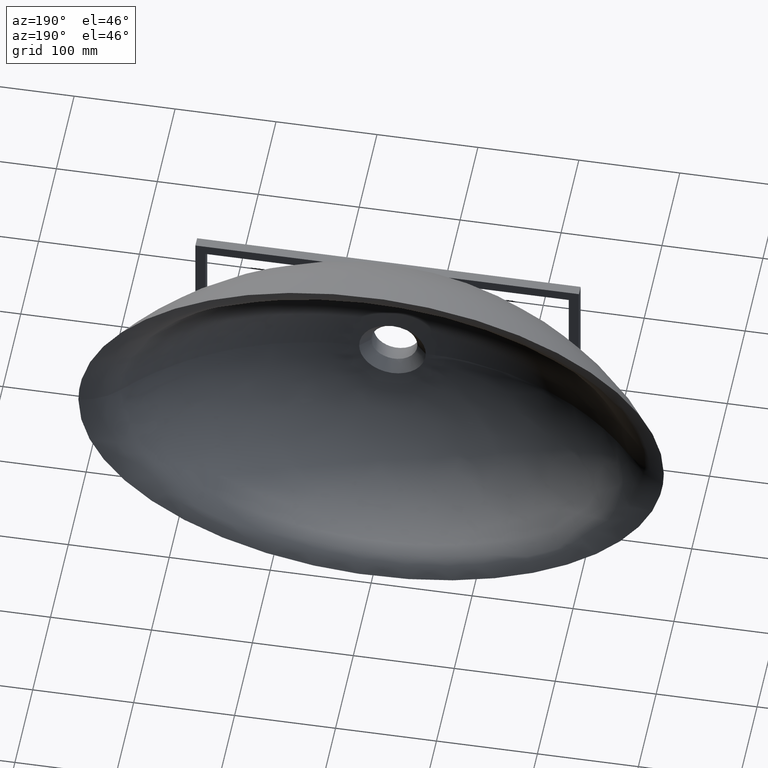
[diagram: clean part render]
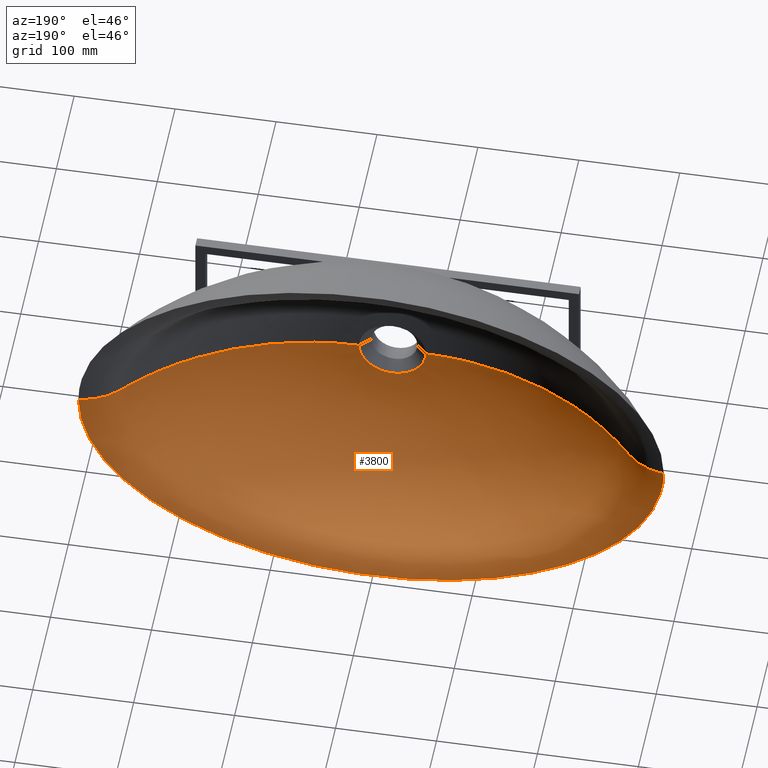
[diagram: same view with one face highlighted and labeled with its STEP entity id]
A machine part, auxiliary view. The second image highlights one B-rep face of the part: STEP entity #3800.
In plain terms, the highlighted face is a freeform B-spline surface patch.
Its self-contained STEP definition (entity closure, byte-faithful):
#13 = B_SPLINE_CURVE_WITH_KNOTS ( 'NONE', 3,
 ( #3009, #3030, #1682, #1898, #1870, #1890, #1887, #1872, #1709, #1704, #1697, #1694, #1531, #1514, #962, #1280, #845 ),
 .UNSPECIFIED., .F., .F.,
 ( 4, 1, 1, 1, 1, 1, 1, 1, 1, 1, 1, 1, 1, 1, 4 ),
 ( 0.5000000000000102100, 0.5416666666685932000, 0.5833333333350848600, 0.6250000000015762900, 0.6666666666680678400, 0.7083333333345593900, 0.7500000000010509400, 0.7916666666675423700, 0.8333333333340339200, 0.8750000000005253600, 0.9166666666670169100, 0.9583333333335084500, 0.9916666666667017800, 0.9937500000000261100, 1.000000000000000000 ),
 .UNSPECIFIED. ) ;
#23 = CARTESIAN_POINT ( 'NONE',  ( -259.5326267427180400, -12.02913988187389500, -1.821459649775647400E-014 ) ) ;
#39 = CARTESIAN_POINT ( 'NONE',  ( 2.023597109561069600E-014, -17.37252391124498300, -172.9788570345855600 ) ) ;
#108 = CARTESIAN_POINT ( 'NONE',  ( -243.8617812565147700, -27.78511163516572000, -19.84233584530560500 ) ) ;
#133 = CARTESIAN_POINT ( 'NONE',  ( -130.9513131589784800, -12.21096774094403700, 152.0706638729422200 ) ) ;
#134 = B_SPLINE_CURVE_WITH_KNOTS ( 'NONE', 3,
 ( #2898, #2883, #2889, #2876, #2871, #2870, #2867, #2864, #2858, #2856, #2846, #2841, #2837, #2832, #2822, #2811, #2799 ),
 .UNSPECIFIED., .F., .F.,
 ( 4, 1, 1, 1, 1, 1, 1, 1, 1, 1, 1, 1, 1, 1, 4 ),
 ( 0.0000000000000000000, 0.006249999999973950000, 0.008333333333298451400, 0.04166666666649236600, 0.08333333333298484400, 0.1249999999994773300, 0.1666666666659695800, 0.2083333333324621000, 0.2499999999989544500, 0.2916666666654468300, 0.3333333333319392600, 0.3749999999984317000, 0.4166666666649240800, 0.4583333333314165100, 0.5000000000000004400 ),
 .UNSPECIFIED. ) ;
#149 = CARTESIAN_POINT ( 'NONE',  ( -259.4411836618852500, -12.02934191282845900, 5.331108203799954200 ) ) ;
#156 = CARTESIAN_POINT ( 'NONE',  ( 214.6430303031447400, -27.64932799438582100, 84.62298833723267000 ) ) ;
#166 = CARTESIAN_POINT ( 'NONE',  ( -207.4681364742391500, 0.0000000000000000000, 139.5044365947469200 ) ) ;
#171 = CARTESIAN_POINT ( 'NONE',  ( -259.5326267427180400, -12.02913988187388000, -2.284760658771479500 ) ) ;
#178 = CARTESIAN_POINT ( 'NONE',  ( 293.4042523621409900, 0.0000000000000000000, 7.920804729815802100E-014 ) ) ;
#200 = CARTESIAN_POINT ( 'NONE',  ( -268.7814485358186400, -6.047477731285581200, -1.864827736675067600E-014 ) ) ;
#210 = CARTESIAN_POINT ( 'NONE',  ( -270.5718030756531200, -1.858185246253692500, -52.18010492856134900 ) ) ;
#224 = CARTESIAN_POINT ( 'NONE',  ( 250.9462811114659900, -0.3587463993371959900, 96.98640308163767500 ) ) ;
#253 = ORIENTED_EDGE ( 'NONE', *, *, #3441, .T. ) ;
#269 = CARTESIAN_POINT ( 'NONE',  ( -192.3186478849362100, -5.992688285415277400, 128.3383926607205300 ) ) ;
#274 = CARTESIAN_POINT ( 'NONE',  ( 123.5335801625706300, -27.36611761963440500, 147.0190254884072100 ) ) ;
#312 = CARTESIAN_POINT ( 'NONE',  ( -290.0000000000000600, 0.0000000000000000000, -3.794707603699265500E-014 ) ) ;
#313 = CARTESIAN_POINT ( 'NONE',  ( 235.6254114609406500, -6.020083008351347700, 90.51562227570453000 ) ) ;
#323 = CARTESIAN_POINT ( 'NONE',  ( -286.2662132290075800, -0.3916238407229262200, -2.558717127065790500E-014 ) ) ;
#348 = CARTESIAN_POINT ( 'NONE',  ( 207.4681364742389500, 0.0000000000000000000, 139.5044365947470100 ) ) ;
#355 = CARTESIAN_POINT ( 'NONE',  ( -206.8325171840541800, -62.60100059054899200, -2.211772431870429000E-014 ) ) ;
#357 = CARTESIAN_POINT ( 'NONE',  ( -286.1654180416507000, -0.3915142492516577900, -5.903959733917856700 ) ) ;
#460 = CARTESIAN_POINT ( 'NONE',  ( -3.088089285551188300E-012, -12.27831139245015800, 175.4789053521275800 ) ) ;
#495 = CARTESIAN_POINT ( 'NONE',  ( 68.32418766163191000, -12.25810829699843800, -169.3796170422181700 ) ) ;
#522 = CARTESIAN_POINT ( 'NONE',  ( -286.2662132290075200, -0.3916238407229351000, -2.530268457393407100 ) ) ;
#534 = CARTESIAN_POINT ( 'NONE',  ( -244.5632338222608600, -1.804689553226088300, -94.23873179270113100 ) ) ;
#546 = CARTESIAN_POINT ( 'NONE',  ( 279.5465340718766400, -0.3843177426371980900, 50.60536914787257200 ) ) ;
#592 = CARTESIAN_POINT ( 'NONE',  ( -237.5398404226965600, -27.75212287114420200, -46.83381932107033700 ) ) ;
#595 = CARTESIAN_POINT ( 'NONE',  ( -277.6398505411828500, -0.3826129864171312100, -53.69743807678460000 ) ) ;
#614 = CARTESIAN_POINT ( 'NONE',  ( -63.92560021733739700, -118.8979911153976900, -4.119968255444916800E-015 ) ) ;
#620 = CARTESIAN_POINT ( 'NONE',  ( -267.5905460526989300, -6.046351503787204400, -21.23669514266731500 ) ) ;
#637 = CARTESIAN_POINT ( 'NONE',  ( -278.8783228294598800, -1.878136956254967000, 5.737190351130902100 ) ) ;
#698 = CARTESIAN_POINT ( 'NONE',  ( 207.4681364742390000, 0.0000000000000000000, -139.5044365947468600 ) ) ;
#704 = CARTESIAN_POINT ( 'NONE',  ( 244.5632338222581600, -1.804689553227513800, 94.23873179272146700 ) ) ;
#749 = EDGE_CURVE ( 'NONE', #3784, #2271, #134, .T. ) ;
#773 = ORIENTED_EDGE ( 'NONE', *, *, #749, .T. ) ;
#790 = CARTESIAN_POINT ( 'NONE',  ( -227.5024215513903400, -12.08974916823099100, 87.56615127639860000 ) ) ;
#802 = CARTESIAN_POINT ( 'NONE',  ( -278.8783228294597600, -1.878136956255059200, -5.737190351131004300 ) ) ;
#816 = CARTESIAN_POINT ( 'NONE',  ( -244.5632338222634400, -1.804689553224621900, 94.23873179269800500 ) ) ;
#821 = CARTESIAN_POINT ( 'NONE',  ( -66.89276565336602700, -17.35531969132262400, 166.9537776449784300 ) ) ;
#845 = CARTESIAN_POINT ( 'NONE',  ( -290.0000000000000600, 0.0000000000000000000, -3.794707603699265500E-014 ) ) ;
#846 = CARTESIAN_POINT ( 'NONE',  ( -289.8978724291357600, 0.0000000000000000000, 5.987325410552259100 ) ) ;
#856 = CARTESIAN_POINT ( 'NONE',  ( -140.7478868009618500, -1.657303460190299800, -163.7214692447536500 ) ) ;
#871 = CARTESIAN_POINT ( 'NONE',  ( -204.8061650934100400, -0.3258689579491549400, 137.5489500216654300 ) ) ;
#878 = CARTESIAN_POINT ( 'NONE',  ( -253.0174384519724000, -17.16246038598820400, -20.24198039689496300 ) ) ;
#899 = CARTESIAN_POINT ( 'NONE',  ( 128.2176948506754900, -17.31517651150334900, -149.8711343578779100 ) ) ;
#902 = CARTESIAN_POINT ( 'NONE',  ( -64.43594682754624600, -27.25598025167155600, 163.8412843194317600 ) ) ;
#914 = CARTESIAN_POINT ( 'NONE',  ( -222.7577180369025300, -17.21195119196670500, 86.29264373296376800 ) ) ;
#929 = CARTESIAN_POINT ( 'NONE',  ( 247.8404005165464000, -27.80666709146574400, -2.957954375639540500E-011 ) ) ;
#935 = CARTESIAN_POINT ( 'NONE',  ( -33.00000000000000000, -120.0000000000000000, -6.396792817664476200E-015 ) ) ;
#938 = CARTESIAN_POINT ( 'NONE',  ( 239.1753268598081900, -27.75946536233991700, -44.13459296279833700 ) ) ;
#948 = CARTESIAN_POINT ( 'NONE',  ( -277.7405783829895000, -1.875352996719708200, 22.10859726894294800 ) ) ;
#962 = CARTESIAN_POINT ( 'NONE',  ( -289.8978724291357600, 0.0000000000000000000, -5.987325410552379900 ) ) ;
#969 = CARTESIAN_POINT ( 'NONE',  ( 63.92560021733752500, -118.8979911153977300, -2.925677056845005600E-010 ) ) ;
#972 = CARTESIAN_POINT ( 'NONE',  ( 94.56510076044547500, -113.9373867591511400, -4.305477926435198900E-010 ) ) ;
#975 = CARTESIAN_POINT ( 'NONE',  ( 124.5335973330846300, -105.7145928391636400, -5.542490255464570400E-010 ) ) ;
#990 = CARTESIAN_POINT ( 'NONE',  ( -4.519680938957756900E-012, -1.575422297391897200, 188.9276281812457500 ) ) ;
#1008 = CARTESIAN_POINT ( 'NONE',  ( -290.0000000000000600, 0.0000000000000000000, -3.794707603699265500E-014 ) ) ;
#1016 = CARTESIAN_POINT ( 'NONE',  ( -260.6831641489065400, -6.039969547962806800, -50.12189579383986900 ) ) ;
#1083 = CARTESIAN_POINT ( 'NONE',  ( -68.32418766163428400, -12.25810829699836900, 169.3796170422212100 ) ) ;
#1100 = CARTESIAN_POINT ( 'NONE',  ( -268.7814485358186400, -6.047477731285581200, -1.864827736675067600E-014 ) ) ;
#1105 = CARTESIAN_POINT ( 'NONE',  ( 76.32195028835916200, 0.0000000000000000000, -190.4218675129826000 ) ) ;
#1110 = CARTESIAN_POINT ( 'NONE',  ( 279.5465340718769200, -0.3843177426368441500, -50.60536914786162300 ) ) ;
#1114 = CARTESIAN_POINT ( 'NONE',  ( 66.89276565336723500, -17.35531969132265600, -166.9537776449772100 ) ) ;
#1124 = CARTESIAN_POINT ( 'NONE',  ( 73.43910902663637300, -1.599986646231819100, 182.3612510059358000 ) ) ;
#1126 = CARTESIAN_POINT ( 'NONE',  ( -251.7074880336994600, -12.04575131591199600, -48.48660904882736100 ) ) ;
#1135 = CARTESIAN_POINT ( 'NONE',  ( -75.34617922756749000, -0.2674201732621300200, 187.7354178941635900 ) ) ;
#1137 = CARTESIAN_POINT ( 'NONE',  ( 130.9513131589761800, -12.21096774094398400, -152.0706638729353700 ) ) ;
#1155 = CARTESIAN_POINT ( 'NONE',  ( -7.119333068714958900E-014, -1.575422297391989100, -188.9276281812462100 ) ) ;
#1167 = CARTESIAN_POINT ( 'NONE',  ( -144.4063765949922000, -0.2929915165625038300, 168.5323745375462500 ) ) ;
#1214 = CARTESIAN_POINT ( 'NONE',  ( -135.6196069492364400, -5.965293562480313800, 157.2108438716834700 ) ) ;
#1220 = CARTESIAN_POINT ( 'NONE',  ( 123.5335801625461300, -27.36611761962869900, -147.0190254884410000 ) ) ;
#1230 = CARTESIAN_POINT ( 'NONE',  ( 130.9513131589709500, -12.21096774094158600, 152.0706638729628500 ) ) ;
#1244 = CARTESIAN_POINT ( 'NONE',  ( -181.8094986010345900, -17.26356385173382100, -122.3389813901503200 ) ) ;
#1255 = CARTESIAN_POINT ( 'NONE',  ( -124.5335973330847700, -105.7145928391633900, -1.008308020411519100E-014 ) ) ;
#1264 = CARTESIAN_POINT ( 'NONE',  ( -278.9765273696700700, -1.878382599743386500, 2.458795864770375600 ) ) ;
#1269 = CARTESIAN_POINT ( 'NONE',  ( 192.3186478849338500, -5.992688285415027000, -128.3383926607027100 ) ) ;
#1280 = CARTESIAN_POINT ( 'NONE',  ( -290.0000000000000600, 0.0000000000000000000, -2.565996604522497100 ) ) ;
#1286 = CARTESIAN_POINT ( 'NONE',  ( -7.293970115396231100E-014, 0.0000000000000000000, 197.2890662435087800 ) ) ;
#1291 = CARTESIAN_POINT ( 'NONE',  ( 33.00000000000000700, -120.0000000000000000, -1.468494978547234000E-010 ) ) ;
#1292 = CARTESIAN_POINT ( 'NONE',  ( -268.7814485358186400, -6.047477731285581200, -1.864827736675067600E-014 ) ) ;
#1298 = CARTESIAN_POINT ( 'NONE',  ( 128.2176948506785500, -17.31517651150131700, 149.8711343578890500 ) ) ;
#1308 = ORIENTED_EDGE ( 'NONE', *, *, #2762, .F. ) ;
#1339 = B_SPLINE_CURVE_WITH_KNOTS ( 'NONE', 3,
 ( #312, #323, #3647, #1100, #23, #1754, #3670, #1595, #355, #2276, #2520, #1255, #3499, #614, #2814, #935 ),
 .UNSPECIFIED., .F., .F.,
 ( 4, 1, 1, 1, 2, 1, 1, 1, 1, 1, 1, 1, 4 ),
 ( 0.0000000000000000000, 0.03853726871348315400, 0.07707453742696630800, 0.1156118061404494800, 0.1541490748539326400, 0.2598804404971910600, 0.3656118061404494100, 0.4713431717837078800, 0.5770745374269664600, 0.6828059030702247100, 0.7885372687134830600, 0.8942686343567414200, 1.000000000000000000 ),
 .UNSPECIFIED. ) ;
#1374 = CARTESIAN_POINT ( 'NONE',  ( -60.62240486772476100, -41.36457174265363800, -158.1729108474271800 ) ) ;
#1382 = CARTESIAN_POINT ( 'NONE',  ( 146.2788580815367500, 0.0000000000000000000, -170.9372657958254800 ) ) ;
#1404 = CARTESIAN_POINT ( 'NONE',  ( 262.4730036266175300, -6.041390015077627000, -47.23662961654042600 ) ) ;
#1420 = CARTESIAN_POINT ( 'NONE',  ( 1.721290692923882100E-012, -17.37252391124507900, 172.9788570345852500 ) ) ;
#1426 = CARTESIAN_POINT ( 'NONE',  ( 283.1914952757175600, 0.0000000000000000000, 51.31993209044843200 ) ) ;
#1434 = CARTESIAN_POINT ( 'NONE',  ( -281.2596886097432500, 0.0000000000000000000, 54.45593140531494900 ) ) ;
#1438 = CARTESIAN_POINT ( 'NONE',  ( 262.5807294371450700, -12.02240551672314200, 2.407026537339691100E-011 ) ) ;
#1462 = CARTESIAN_POINT ( 'NONE',  ( -284.9976657053862300, -0.3902722125769497700, 22.75129444046949700 ) ) ;
#1469 = CARTESIAN_POINT ( 'NONE',  ( -130.9513131589751000, -12.21096774094248400, -152.0706638729518500 ) ) ;
#1478 = CARTESIAN_POINT ( 'NONE',  ( 250.9462811114686600, -0.3587463993355086100, -96.98640308162387700 ) ) ;
#1488 = CARTESIAN_POINT ( 'NONE',  ( -290.0000000000000600, 0.0000000000000000000, -3.794707603699265500E-014 ) ) ;
#1500 = CARTESIAN_POINT ( 'NONE',  ( 140.7478868009634400, -1.657303460188451500, -163.7214692447418800 ) ) ;
#1507 = CARTESIAN_POINT ( 'NONE',  ( -254.0558884733503100, -17.16051057439712200, 5.252788645742771900 ) ) ;
#1514 = CARTESIAN_POINT ( 'NONE',  ( -288.7146899587345400, 0.0000000000000000000, -23.07256972886458600 ) ) ;
#1531 = CARTESIAN_POINT ( 'NONE',  ( -281.2596886097431400, 0.0000000000000000000, -54.45593140531499200 ) ) ;
#1532 = CARTESIAN_POINT ( 'NONE',  ( -246.4750902598465500, -17.17448422413466200, 47.77515208147321600 ) ) ;
#1535 = CARTESIAN_POINT ( 'NONE',  ( 175.1665812920422800, -27.50772280701055200, 119.9787781283865100 ) ) ;
#1550 = CARTESIAN_POINT ( 'NONE',  ( -5.621875315078065500E-012, -5.934854981441908700, 181.3964723124504400 ) ) ;
#1555 = CARTESIAN_POINT ( 'NONE',  ( -254.1455336540240400, -17.16033853219786900, 2.251195133889745100 ) ) ;
#1558 = CARTESIAN_POINT ( 'NONE',  ( -116.2547234792220900, -41.63348303703112700, -141.8587368999293700 ) ) ;
#1565 = CARTESIAN_POINT ( 'NONE',  ( -164.8395604639981400, -41.97922612980112000, -115.7291404235769500 ) ) ;
#1586 = CARTESIAN_POINT ( 'NONE',  ( 175.1665812920188000, -27.50772280700328000, -119.9787781284399700 ) ) ;
#1595 = CARTESIAN_POINT ( 'NONE',  ( -230.6268484076309200, -42.67071231533737600, -2.558717127065790500E-014 ) ) ;
#1620 = CARTESIAN_POINT ( 'NONE',  ( -146.2788580815369000, 0.0000000000000000000, 170.9372657958255400 ) ) ;
#1626 = CARTESIAN_POINT ( 'NONE',  ( 239.1753268598068000, -27.75946536234144800, 44.13459296274186300 ) ) ;
#1643 = CARTESIAN_POINT ( 'NONE',  ( -144.4063765949902300, -0.2929915165633309400, -168.5323745375486100 ) ) ;
#1650 = CARTESIAN_POINT ( 'NONE',  ( -223.6230643675405400, -42.57595309732077700, -45.15168893466028500 ) ) ;
#1679 = CARTESIAN_POINT ( 'NONE',  ( -202.0171232599846600, -42.32496922257040900, -81.62257198024254000 ) ) ;
#1682 = CARTESIAN_POINT ( 'NONE',  ( 283.1914952752306400, 0.0000000000000000000, -51.31993209123928800 ) ) ;
#1686 = CARTESIAN_POINT ( 'NONE',  ( -246.4750902598470400, -17.17448422413406200, -47.77515208147379200 ) ) ;
#1694 = CARTESIAN_POINT ( 'NONE',  ( -254.2143952860994600, 0.0000000000000000000, -98.35992181344710200 ) ) ;
#1697 = CARTESIAN_POINT ( 'NONE',  ( -207.4681364742390600, 0.0000000000000000000, -139.5044365947469500 ) ) ;
#1704 = CARTESIAN_POINT ( 'NONE',  ( -146.2788580815367000, 0.0000000000000000000, -170.9372657958255400 ) ) ;
#1709 = CARTESIAN_POINT ( 'NONE',  ( -76.32195028835920400, 0.0000000000000000000, -190.4218675129827400 ) ) ;
#1736 = CARTESIAN_POINT ( 'NONE',  ( -185.6886632701323100, -12.15035845458606900, -124.1449117931749400 ) ) ;
#1752 = CARTESIAN_POINT ( 'NONE',  ( 222.7577180369048100, -17.21195119196461600, 86.29264373297701200 ) ) ;
#1754 = CARTESIAN_POINT ( 'NONE',  ( -254.1455336540240400, -17.16033853219785500, -2.775557561562891400E-014 ) ) ;
#1758 = CARTESIAN_POINT ( 'NONE',  ( -281.2596886097431400, 0.0000000000000000000, -54.45593140531499200 ) ) ;
#1766 = CARTESIAN_POINT ( 'NONE',  ( -73.43910902664133300, -1.599986646231700100, -182.3612510059349500 ) ) ;
#1770 = CARTESIAN_POINT ( 'NONE',  ( 227.5024215513865300, -12.08974916822857000, 87.56615127643145500 ) ) ;
#1796 = CARTESIAN_POINT ( 'NONE',  ( 135.6196069492221500, -5.965293562481380500, 157.2108438717069400 ) ) ;
#1805 = CARTESIAN_POINT ( 'NONE',  ( -214.6430303031335400, -27.64932799438317100, -84.62298833726750000 ) ) ;
#1817 = CARTESIAN_POINT ( 'NONE',  ( 75.34617922756395100, -0.2674201732625818300, 187.7354178941651500 ) ) ;
#1829 = CARTESIAN_POINT ( 'NONE',  ( 199.6057554446997000, -1.730996506705919900, -133.6370714107807500 ) ) ;
#1857 = CARTESIAN_POINT ( 'NONE',  ( -128.2176948506760000, -17.31517651150208800, -149.8711343578846400 ) ) ;
#1870 = CARTESIAN_POINT ( 'NONE',  ( 207.4681364742390000, 0.0000000000000000000, -139.5044365947468600 ) ) ;
#1872 = CARTESIAN_POINT ( 'NONE',  ( 2.982911227050744100E-014, 0.0000000000000000000, -197.2890662435087000 ) ) ;
#1883 = CARTESIAN_POINT ( 'NONE',  ( -33.00000000000000000, -120.0000000000000000, -6.396792817664476200E-015 ) ) ;
#1887 = CARTESIAN_POINT ( 'NONE',  ( 76.32195028835916200, 0.0000000000000000000, -190.4218675129826000 ) ) ;
#1890 = CARTESIAN_POINT ( 'NONE',  ( 146.2788580815367500, 0.0000000000000000000, -170.9372657958254800 ) ) ;
#1898 = CARTESIAN_POINT ( 'NONE',  ( 254.2143952860995700, 0.0000000000000000000, -98.35992181344708700 ) ) ;
#1910 = CARTESIAN_POINT ( 'NONE',  ( 70.76336621404293200, -5.943986555753316900, -175.0967955063115900 ) ) ;
#1932 = CARTESIAN_POINT ( 'NONE',  ( 254.2143952860995700, 0.0000000000000000000, -98.35992181344708700 ) ) ;
#1947 = EDGE_CURVE ( 'NONE', #2839, #3968, #13, .T. ) ;
#1948 = CARTESIAN_POINT ( 'NONE',  ( 204.8061650934093300, -0.3258689579489255600, -137.5489500216616500 ) ) ;
#1986 = CARTESIAN_POINT ( 'NONE',  ( -290.0000000000000600, 0.0000000000000000000, -2.565996604522497100 ) ) ;
#2065 = CARTESIAN_POINT ( 'NONE',  ( 268.7814485358177300, -6.047477731285531500, -7.634416069071085500E-010 ) ) ;
#2069 = CARTESIAN_POINT ( 'NONE',  ( 278.9765273696710300, -1.878382599743428200, -8.059172326630607400E-010 ) ) ;
#2100 = CARTESIAN_POINT ( 'NONE',  ( 227.5024215513908500, -12.08974916823167500, -87.56615127637363100 ) ) ;
#2106 = CARTESIAN_POINT ( 'NONE',  ( -76.32195028835920400, 0.0000000000000000000, -190.4218675129827400 ) ) ;
#2112 = CARTESIAN_POINT ( 'NONE',  ( 185.6886632701290100, -12.15035845458489100, 124.1449117931949200 ) ) ;
#2125 = CARTESIAN_POINT ( 'NONE',  ( -260.6831641489082500, -6.039969547962504800, 50.12189579383828400 ) ) ;
#2135 = CARTESIAN_POINT ( 'NONE',  ( -278.9765273696700100, -1.878382599743406500, -2.363560736018399700E-014 ) ) ;
#2144 = CARTESIAN_POINT ( 'NONE',  ( 144.4063765949877300, -0.2929915165638153900, 168.5323745375511900 ) ) ;
#2157 = CARTESIAN_POINT ( 'NONE',  ( -286.2662132290075800, -0.3916238407229173900, 2.530268457393310700 ) ) ;
#2163 = CARTESIAN_POINT ( 'NONE',  ( -244.9520426309667600, -27.79093318175753400, -2.206729648138619400 ) ) ;
#2188 = CARTESIAN_POINT ( 'NONE',  ( -128.2176948506741500, -17.31517651150342400, 149.8711343578807500 ) ) ;
#2192 = CARTESIAN_POINT ( 'NONE',  ( 64.43594682757374400, -27.25598025167348100, 163.8412843194236600 ) ) ;
#2208 = CARTESIAN_POINT ( 'NONE',  ( 289.9999999999999400, 0.0000000000000000000, -8.586723254894912700E-010 ) ) ;
#2218 = CARTESIAN_POINT ( 'NONE',  ( 33.00000000000000700, -120.0000000000000000, -1.468494978547234000E-010 ) ) ;
#2221 = CARTESIAN_POINT ( 'NONE',  ( 43.30026160148278100, -119.9999999999999700, -1.955002000591927700E-010 ) ) ;
#2224 = CARTESIAN_POINT ( 'NONE',  ( 153.4657720813950700, -94.32025848067689800, -6.573796983072839300E-010 ) ) ;
#2234 = CARTESIAN_POINT ( 'NONE',  ( 181.0096481516362700, -79.88985716377236200, -7.341465781834519800E-010 ) ) ;
#2235 = CARTESIAN_POINT ( 'NONE',  ( -70.76336621404264800, -5.943986555753707700, -175.0967955063213400 ) ) ;
#2238 = CARTESIAN_POINT ( 'NONE',  ( 206.8325171840543800, -62.60100059054882100, -7.792969689488754700E-010 ) ) ;
#2242 = CARTESIAN_POINT ( 'NONE',  ( 230.6268484076308600, -42.67071231533738300, -7.882919541133962800E-010 ) ) ;
#2251 = CARTESIAN_POINT ( 'NONE',  ( 244.9520426309667600, -27.79093318175739200, -7.676337301482102300E-010 ) ) ;
#2259 = CARTESIAN_POINT ( 'NONE',  ( 254.1455336540239200, -17.16033853219777700, -7.437923799509228800E-010 ) ) ;
#2261 = CARTESIAN_POINT ( 'NONE',  ( 259.5326267427184300, -12.02913988187383900, -7.409286482235402200E-010 ) ) ;
#2271 = VERTEX_POINT ( 'NONE', #1291 ) ;
#2276 = CARTESIAN_POINT ( 'NONE',  ( -181.0096481516365000, -79.88985716377224800, -1.669671345627676800E-014 ) ) ;
#2297 = CARTESIAN_POINT ( 'NONE',  ( 289.9999999999999400, 0.0000000000000000000, -8.586723254894912700E-010 ) ) ;
#2313 = CARTESIAN_POINT ( 'NONE',  ( -237.5398404226922900, -27.75212287114260700, 46.83381932107199900 ) ) ;
#2389 = CARTESIAN_POINT ( 'NONE',  ( -123.5335801625500800, -27.36611761963232000, -147.0190254884208200 ) ) ;
#2399 = CARTESIAN_POINT ( 'NONE',  ( 272.4295580223252400, -1.862006367184314600, 49.17591729542515100 ) ) ;
#2400 = CARTESIAN_POINT ( 'NONE',  ( -259.4411836618852500, -12.02934191282837700, -5.331108203800049200 ) ) ;
#2405 = CARTESIAN_POINT ( 'NONE',  ( 283.1914952757178400, 0.0000000000000000000, -51.31993209044834700 ) ) ;
#2411 = CARTESIAN_POINT ( 'NONE',  ( -230.6268484076309200, -42.67071231533737600, -2.558717127065790500E-014 ) ) ;
#2423 = CARTESIAN_POINT ( 'NONE',  ( -243.8617812565129600, -27.78511163516505900, 19.84233584530577900 ) ) ;
#2427 = CARTESIAN_POINT ( 'NONE',  ( 235.6254114609485300, -6.020083008349930200, -90.51562227563873400 ) ) ;
#2431 = CARTESIAN_POINT ( 'NONE',  ( -268.7814485358187000, -6.047477731285574100, 2.361831480828248800 ) ) ;
#2440 = CARTESIAN_POINT ( 'NONE',  ( -290.0000000000000600, 0.0000000000000000000, 2.565996604522375000 ) ) ;
#2448 = CARTESIAN_POINT ( 'NONE',  ( -229.5964681203775500, -42.65649843263542400, -19.12862823829112500 ) ) ;
#2451 = CARTESIAN_POINT ( 'NONE',  ( -277.6398505411833100, -0.3826129864167569500, 53.69743807678424500 ) ) ;
#2467 = CARTESIAN_POINT ( 'NONE',  ( 181.8094986010336200, -17.26356385173542300, -122.3389813901407500 ) ) ;
#2480 = CARTESIAN_POINT ( 'NONE',  ( -175.1665812920141400, -27.50772280700436700, 119.9787781284208000 ) ) ;
#2489 = CARTESIAN_POINT ( 'NONE',  ( -230.5449408696452500, -42.66955983836169300, -4.963773016997414800 ) ) ;
#2491 = CARTESIAN_POINT ( 'NONE',  ( -181.8094986010331100, -17.26356385173515300, 122.3389813901471400 ) ) ;
#2492 = CARTESIAN_POINT ( 'NONE',  ( -230.6268484076311200, -42.67071231533746100, -2.127331292998940500 ) ) ;
#2496 = CARTESIAN_POINT ( 'NONE',  ( -123.5335801625349500, -27.36611761962880300, 147.0190254884327300 ) ) ;
#2505 = CARTESIAN_POINT ( 'NONE',  ( 286.2662132290074600, -0.3916238407229245500, -8.411006774415135600E-010 ) ) ;
#2509 = CARTESIAN_POINT ( 'NONE',  ( -175.4648051607605100, -79.76305367549559800, 37.64804733190640500 ) ) ;
#2511 = CARTESIAN_POINT ( 'NONE',  ( -235.6254114609489000, -6.020083008350328100, 90.51562227566711300 ) ) ;
#2512 = CARTESIAN_POINT ( 'NONE',  ( -158.4202314314644000, -79.42719578763276900, 68.12635258566435000 ) ) ;
#2515 = CARTESIAN_POINT ( 'NONE',  ( -284.9976657053860500, -0.3902722125771082600, -22.75129444046964600 ) ) ;
#2517 = CARTESIAN_POINT ( 'NONE',  ( -129.2462635451613300, -78.96453441149677100, 96.55884113265283000 ) ) ;
#2520 = CARTESIAN_POINT ( 'NONE',  ( -153.4657720813948500, -94.32025848067718200, -1.452830911130575900E-014 ) ) ;
#2527 = CARTESIAN_POINT ( 'NONE',  ( -254.1455336540240400, -17.16033853219785500, -2.775557561562891400E-014 ) ) ;
#2539 = CARTESIAN_POINT ( 'NONE',  ( -135.6196069492303300, -5.965293562480972900, -157.2108438716945800 ) ) ;
#2543 = CARTESIAN_POINT ( 'NONE',  ( 192.3186478849246200, -5.992688285416448900, 128.3383926607522200 ) ) ;
#2544 = CARTESIAN_POINT ( 'NONE',  ( -185.6886632701349200, -12.15035845458762000, 124.1449117931670300 ) ) ;
#2568 = CARTESIAN_POINT ( 'NONE',  ( -250.9462811114675600, -0.3587463993365649400, -96.98640308163086800 ) ) ;
#2579 = CARTESIAN_POINT ( 'NONE',  ( -214.6430303031256400, -27.64932799438039600, 84.62298833727317100 ) ) ;
#2602 = CARTESIAN_POINT ( 'NONE',  ( 248.1691882757716900, -17.17180801214652400, -45.02390267778666600 ) ) ;
#2615 = CARTESIAN_POINT ( 'NONE',  ( -290.0000000000000600, 0.0000000000000000000, -3.794707603699265500E-014 ) ) ;
#2621 = CARTESIAN_POINT ( 'NONE',  ( -33.00000000000000000, -120.0000000000000000, -6.396792817664476200E-015 ) ) ;
#2624 = CARTESIAN_POINT ( 'NONE',  ( -75.34617922756601200, -0.2674201732625224300, -187.7354178941650100 ) ) ;
#2626 = CARTESIAN_POINT ( 'NONE',  ( -33.00000000000000000, -120.0000000000000100, 0.4388568511917195800 ) ) ;
#2630 = CARTESIAN_POINT ( 'NONE',  ( -32.98756784255958500, -120.0000000000000300, 1.023999319447354200 ) ) ;
#2631 = CARTESIAN_POINT ( 'NONE',  ( -32.84426857135494500, -120.0000000000000400, 3.946321791925879700 ) ) ;
#2641 = CARTESIAN_POINT ( 'NONE',  ( -31.94578056316645800, -120.0000000000000000, 9.317081241428105900 ) ) ;
#2651 = CARTESIAN_POINT ( 'NONE',  ( -28.79005539188281300, -120.0000000000000300, 16.87630028773803700 ) ) ;
#2653 = CARTESIAN_POINT ( 'NONE',  ( -23.61951603177940800, -120.0000000000000600, 23.61951603177939800 ) ) ;
#2659 = CARTESIAN_POINT ( 'NONE',  ( -222.7577180369035000, -17.21195119196566000, -86.29264373296554400 ) ) ;
#2664 = CARTESIAN_POINT ( 'NONE',  ( -16.87630028773804700, -120.0000000000000700, 28.79005539188280900 ) ) ;
#2668 = CARTESIAN_POINT ( 'NONE',  ( -8.777137023834559000, -120.0000000000000300, 32.17118950397242100 ) ) ;
#2670 = CARTESIAN_POINT ( 'NONE',  ( 4.336808689942017700E-015, -120.0000000000000100, 33.41440524801380000 ) ) ;
#2675 = CARTESIAN_POINT ( 'NONE',  ( -251.7074880337004600, -12.04575131591269400, 48.48660904882599000 ) ) ;
#2677 = CARTESIAN_POINT ( 'NONE',  ( 8.777137023834550100, -120.0000000000000300, 32.17118950397243500 ) ) ;
#2682 = CARTESIAN_POINT ( 'NONE',  ( 16.87630028773804000, -120.0000000000000300, 28.79005539188281700 ) ) ;
#2684 = CARTESIAN_POINT ( 'NONE',  ( 23.61951603177939800, -120.0000000000000000, 23.61951603177941500 ) ) ;
#2686 = CARTESIAN_POINT ( 'NONE',  ( 28.79005539188280200, -119.9999999999999900, 16.87630028773805400 ) ) ;
#2692 = CARTESIAN_POINT ( 'NONE',  ( -68.32418766163171100, -12.25810829699761900, -169.3796170422267300 ) ) ;
#2696 = CARTESIAN_POINT ( 'NONE',  ( 32.17118950397242100, -120.0000000000000000, 8.777137023834567800 ) ) ;
#2700 = CARTESIAN_POINT ( 'NONE',  ( 33.41440524801380000, -120.0000000000000000, 2.125036258071588700E-014 ) ) ;
#2701 = CARTESIAN_POINT ( 'NONE',  ( 32.17118950397242800, -120.0000000000000000, -8.777137023834543000 ) ) ;
#2702 = CARTESIAN_POINT ( 'NONE',  ( 28.79005539188281300, -120.0000000000000000, -16.87630028773803700 ) ) ;
#2707 = CARTESIAN_POINT ( 'NONE',  ( -3.731582386961472800E-014, -12.27831139245006900, -175.4789053521284600 ) ) ;
#2709 = CARTESIAN_POINT ( 'NONE',  ( 23.61951603177940800, -120.0000000000000100, -23.61951603177939400 ) ) ;
#2711 = CARTESIAN_POINT ( 'NONE',  ( -254.1455336540239800, -17.16033853219784100, -2.251195133889840600 ) ) ;
#2713 = CARTESIAN_POINT ( 'NONE',  ( 16.87630028773805100, -120.0000000000000100, -28.79005539188280200 ) ) ;
#2715 = CARTESIAN_POINT ( 'NONE',  ( 8.777137023834566100, -120.0000000000000100, -32.17118950397242100 ) ) ;
#2716 = CARTESIAN_POINT ( 'NONE',  ( 1.344410693882025500E-014, -120.0000000000000100, -33.41440524801379300 ) ) ;
#2722 = CARTESIAN_POINT ( 'NONE',  ( -140.7478868009667400, -1.657303460188428200, 163.7214692447468800 ) ) ;
#2727 = CARTESIAN_POINT ( 'NONE',  ( -8.777137023834543000, -120.0000000000000300, -32.17118950397242800 ) ) ;
#2736 = CARTESIAN_POINT ( 'NONE',  ( -16.87630028773802600, -120.0000000000000300, -28.79005539188281300 ) ) ;
#2738 = CARTESIAN_POINT ( 'NONE',  ( -23.61951603177938400, -120.0000000000000300, -23.61951603177941200 ) ) ;
#2740 = CARTESIAN_POINT ( 'NONE',  ( -199.6057554446969700, -1.730996506708269100, -133.6370714107976000 ) ) ;
#2744 = CARTESIAN_POINT ( 'NONE',  ( -28.79005539188279900, -120.0000000000000100, -16.87630028773805800 ) ) ;
#2746 = CARTESIAN_POINT ( 'NONE',  ( -31.94578056316643700, -120.0000000000000000, -9.317081241428123700 ) ) ;
#2749 = CARTESIAN_POINT ( 'NONE',  ( -32.84426857135495900, -119.9999999999999700, -3.946321791925900600 ) ) ;
#2750 = CARTESIAN_POINT ( 'NONE',  ( -32.98756784255959200, -119.9999999999999900, -1.023999319447374900 ) ) ;
#2756 = CARTESIAN_POINT ( 'NONE',  ( -33.00000000000000000, -119.9999999999999900, -0.4388568511917401700 ) ) ;
#2761 = CARTESIAN_POINT ( 'NONE',  ( -33.00000000000000000, -120.0000000000000000, -6.396792817664476200E-015 ) ) ;
#2762 = EDGE_CURVE ( 'NONE', #2839, #2271, #4181, .T. ) ;
#2765 = CARTESIAN_POINT ( 'NONE',  ( -43.30026160148277400, -119.9999999999999700, -9.215718466126787700E-015 ) ) ;
#2769 = CARTESIAN_POINT ( 'NONE',  ( -43.30026160148273800, -119.9999999999999700, 0.5373015223240134000 ) ) ;
#2772 = CARTESIAN_POINT ( 'NONE',  ( -268.6868218621808100, -6.047386415542449700, 5.510940121932595300 ) ) ;
#2773 = CARTESIAN_POINT ( 'NONE',  ( -43.28415048454757400, -120.0000000000000000, 1.253703552089382400 ) ) ;
#2780 = CARTESIAN_POINT ( 'NONE',  ( -43.09824762668742400, -120.0000000000000300, 4.831558673642075700 ) ) ;
#2786 = CARTESIAN_POINT ( 'NONE',  ( -41.93143377443600200, -119.9999999999999900, 11.40703211259033100 ) ) ;
#2788 = CARTESIAN_POINT ( 'NONE',  ( 70.76336621403631000, -5.943986555753776100, 175.0967955063223400 ) ) ;
#2789 = CARTESIAN_POINT ( 'NONE',  ( -244.9520426309666700, -27.79093318175749500, -2.428612866367529900E-014 ) ) ;
#2793 = CARTESIAN_POINT ( 'NONE',  ( -3.160061099767381600E-014, -0.2564610261334651600, -194.5023608822469600 ) ) ;
#2799 = CARTESIAN_POINT ( 'NONE',  ( 33.00000000000000700, -120.0000000000000000, -1.468494978547234000E-010 ) ) ;
#2810 = CARTESIAN_POINT ( 'NONE',  ( 64.43594682755691800, -27.25598025167121800, -163.8412843194352900 ) ) ;
#2811 = CARTESIAN_POINT ( 'NONE',  ( 32.99999999997921000, -120.0000000000000000, -2.925712341424969100 ) ) ;
#2812 = CARTESIAN_POINT ( 'NONE',  ( -37.80488666857405600, -120.0000000000000300, 20.66105543812303900 ) ) ;
#2814 = CARTESIAN_POINT ( 'NONE',  ( -43.30026160148277400, -119.9999999999999700, -9.215718466126787700E-015 ) ) ;
#2817 = CARTESIAN_POINT ( 'NONE',  ( -30.96196011927229500, -120.0000000000000600, 29.00797341544243600 ) ) ;
#2820 = CARTESIAN_POINT ( 'NONE',  ( -22.04098220083433200, -120.0000000000000600, 35.41711146487321600 ) ) ;
#2822 = CARTESIAN_POINT ( 'NONE',  ( 32.17118950391586200, -120.0000000000000000, -8.777137023970032800 ) ) ;
#2832 = CARTESIAN_POINT ( 'NONE',  ( 28.79005539188281300, -120.0000000000000000, -16.87630028773803700 ) ) ;
#2834 = CARTESIAN_POINT ( 'NONE',  ( -11.46832412620018400, -120.0000000000000100, 39.57447018371347300 ) ) ;
#2835 = CARTESIAN_POINT ( 'NONE',  ( -244.9520426309665900, -27.79093318175745600, 2.206729648138531900 ) ) ;
#2837 = CARTESIAN_POINT ( 'NONE',  ( 23.61951603177940800, -120.0000000000000100, -23.61951603177939400 ) ) ;
#2839 = VERTEX_POINT ( 'NONE', #2208 ) ;
#2841 = CARTESIAN_POINT ( 'NONE',  ( 16.87630028773805100, -120.0000000000000100, -28.79005539188280200 ) ) ;
#2842 = CARTESIAN_POINT ( 'NONE',  ( 4.887147249968621900E-012, -120.0000000000000000, 41.09415041977339900 ) ) ;
#2846 = CARTESIAN_POINT ( 'NONE',  ( 8.777137023834566100, -120.0000000000000100, -32.17118950397242100 ) ) ;
#2849 = CARTESIAN_POINT ( 'NONE',  ( 11.46832412620965200, -120.0000000000000100, 39.57447018370912400 ) ) ;
#2852 = CARTESIAN_POINT ( 'NONE',  ( -43.28415048454773700, -119.9999999999999700, -1.253703552089399300 ) ) ;
#2856 = CARTESIAN_POINT ( 'NONE',  ( 1.344410693882025500E-014, -120.0000000000000100, -33.41440524801379300 ) ) ;
#2857 = CARTESIAN_POINT ( 'NONE',  ( -64.43594682755795600, -27.25598025167319300, -163.8412843194250300 ) ) ;
#2858 = CARTESIAN_POINT ( 'NONE',  ( -8.777137023834543000, -120.0000000000000300, -32.17118950397242800 ) ) ;
#2861 = CARTESIAN_POINT ( 'NONE',  ( -43.30026160148280900, -119.9999999999999600, -0.5373015223240413800 ) ) ;
#2864 = CARTESIAN_POINT ( 'NONE',  ( -16.87630028773802600, -120.0000000000000300, -28.79005539188281300 ) ) ;
#2867 = CARTESIAN_POINT ( 'NONE',  ( -23.61951603177938400, -120.0000000000000300, -23.61951603177941200 ) ) ;
#2870 = CARTESIAN_POINT ( 'NONE',  ( -28.79005539188279900, -120.0000000000000100, -16.87630028773805800 ) ) ;
#2871 = CARTESIAN_POINT ( 'NONE',  ( -31.94578056316643700, -120.0000000000000000, -9.317081241428123700 ) ) ;
#2872 = CARTESIAN_POINT ( 'NONE',  ( -43.30026160148277400, -119.9999999999999700, -9.215718466126787700E-015 ) ) ;
#2876 = CARTESIAN_POINT ( 'NONE',  ( -32.84426857135495900, -119.9999999999999700, -3.946321791925900600 ) ) ;
#2878 = CARTESIAN_POINT ( 'NONE',  ( -204.8061650934085700, -0.3258689579499816100, -137.5489500216673400 ) ) ;
#2880 = CARTESIAN_POINT ( 'NONE',  ( 22.04098220084659200, -120.0000000000000100, 35.41711146485948800 ) ) ;
#2883 = CARTESIAN_POINT ( 'NONE',  ( -33.00000000000000000, -119.9999999999999900, -0.4388568511917401700 ) ) ;
#2884 = CARTESIAN_POINT ( 'NONE',  ( 30.96196011928195800, -120.0000000000000000, 29.00797341542396500 ) ) ;
#2886 = CARTESIAN_POINT ( 'NONE',  ( 37.80488666858060800, -119.9999999999999700, 20.66105543810125100 ) ) ;
#2889 = CARTESIAN_POINT ( 'NONE',  ( -32.98756784255959200, -119.9999999999999900, -1.023999319447374900 ) ) ;
#2894 = CARTESIAN_POINT ( 'NONE',  ( 42.22618713914133100, -119.9999999999999700, 10.74603044646468500 ) ) ;
#2895 = CARTESIAN_POINT ( 'NONE',  ( 43.83729883265341700, -119.9999999999999700, -1.593188489095657300E-011 ) ) ;
#2897 = CARTESIAN_POINT ( 'NONE',  ( 140.7478868009557700, -1.657303460191379600, 163.7214692447616400 ) ) ;
#2898 = CARTESIAN_POINT ( 'NONE',  ( -33.00000000000000000, -120.0000000000000000, -6.396792817664476200E-015 ) ) ;
#2902 = CARTESIAN_POINT ( 'NONE',  ( 42.22618713914170000, -119.9999999999999900, -10.74603044649508000 ) ) ;
#2907 = CARTESIAN_POINT ( 'NONE',  ( 37.80488666857386400, -120.0000000000000000, -20.66105543813958100 ) ) ;
#2908 = CARTESIAN_POINT ( 'NONE',  ( 30.96196011927390800, -120.0000000000000100, -29.00797341545277400 ) ) ;
#2914 = CARTESIAN_POINT ( 'NONE',  ( 22.04098220083819700, -120.0000000000000000, -35.41711146487765700 ) ) ;
#2917 = CARTESIAN_POINT ( 'NONE',  ( 11.46832412620389400, -120.0000000000000000, -39.57447018371537700 ) ) ;
#2919 = CARTESIAN_POINT ( 'NONE',  ( 1.066496007994027900E-013, -120.0000000000000000, -41.09415041977271000 ) ) ;
#2925 = CARTESIAN_POINT ( 'NONE',  ( -11.46832412620420900, -120.0000000000000100, -39.57447018370980600 ) ) ;
#2927 = CARTESIAN_POINT ( 'NONE',  ( -22.04098220083953300, -120.0000000000000100, -35.41711146486679200 ) ) ;
#2928 = CARTESIAN_POINT ( 'NONE',  ( -30.96196011927628400, -120.0000000000000100, -29.00797341543715600 ) ) ;
#2938 = CARTESIAN_POINT ( 'NONE',  ( -37.80488666857675600, -120.0000000000000000, -20.66105543812003700 ) ) ;
#2940 = CARTESIAN_POINT ( 'NONE',  ( -41.93143377443745100, -119.9999999999999900, -11.40703211258944800 ) ) ;
#2947 = CARTESIAN_POINT ( 'NONE',  ( -175.1665812920258200, -27.50772280700789100, -119.9787781284109700 ) ) ;
#2953 = CARTESIAN_POINT ( 'NONE',  ( -43.09824762668805000, -119.9999999999999700, -4.831558673641966500 ) ) ;
#2955 = CARTESIAN_POINT ( 'NONE',  ( 68.32418766162830100, -12.25810829699752000, 169.3796170422278100 ) ) ;
#2964 = CARTESIAN_POINT ( 'NONE',  ( -63.92560021733739700, -118.8979911153976900, -4.119968255444916800E-015 ) ) ;
#2965 = CARTESIAN_POINT ( 'NONE',  ( -63.92560021733729800, -118.8979911153976900, 0.7339461487316768500 ) ) ;
#2970 = CARTESIAN_POINT ( 'NONE',  ( 248.1691882757712600, -17.17180801214598100, 45.02390267780520400 ) ) ;
#2972 = CARTESIAN_POINT ( 'NONE',  ( -63.90212084165723600, -118.8979083824708500, 1.712541013707268500 ) ) ;
#2976 = CARTESIAN_POINT ( 'NONE',  ( -63.63089190329929300, -118.8969707426332700, 6.599831353894600700 ) ) ;
#2978 = FACE_OUTER_BOUND ( 'NONE', #3013, .T. ) ;
#2979 = CARTESIAN_POINT ( 'NONE',  ( -61.92668247496618500, -118.8911886303014000, 15.58173137706735300 ) ) ;
#2981 = CARTESIAN_POINT ( 'NONE',  ( 244.5632338222645200, -1.804689553223742400, -94.23873179268011300 ) ) ;
#2984 = CARTESIAN_POINT ( 'NONE',  ( 181.8094986010365200, -17.26356385173280800, 122.3389813901583700 ) ) ;
#2988 = CARTESIAN_POINT ( 'NONE',  ( -55.85591804972207800, -118.8731712373439100, 28.22104901112330900 ) ) ;
#2992 = CARTESIAN_POINT ( 'NONE',  ( -45.66408121987539200, -118.8483513592903100, 39.77129285738314500 ) ) ;
#2994 = CARTESIAN_POINT ( 'NONE',  ( -32.38240907495898600, -118.8235314812367400, 48.65436540737615400 ) ) ;
#2996 = CARTESIAN_POINT ( 'NONE',  ( 199.6057554446923100, -1.730996506709672900, 133.6370714108119800 ) ) ;
#2998 = CARTESIAN_POINT ( 'NONE',  ( -227.5024215513885200, -12.08974916822977800, -87.56615127640307600 ) ) ;
#3002 = CARTESIAN_POINT ( 'NONE',  ( -16.85690218415361500, -118.8042271316397800, 54.36199808765604000 ) ) ;
#3006 = CARTESIAN_POINT ( 'NONE',  ( 1.475945362629842800E-011, -118.7959538389553800, 56.43379158822994400 ) ) ;
#3007 = CARTESIAN_POINT ( 'NONE',  ( 16.85690218418225700, -118.8042271316401300, 54.36199808764300200 ) ) ;
#3009 = CARTESIAN_POINT ( 'NONE',  ( 289.9999999999999400, 0.0000000000000000000, -8.586723254894912700E-010 ) ) ;
#3010 = CARTESIAN_POINT ( 'NONE',  ( 262.4730036266175800, -6.041390015077928900, 47.23662961659261600 ) ) ;
#3013 = EDGE_LOOP ( 'NONE', ( #1308, #3565, #253, #773 ) ) ;
#3015 = CARTESIAN_POINT ( 'NONE',  ( -207.4681364742390600, 0.0000000000000000000, -139.5044365947469500 ) ) ;
#3018 = CARTESIAN_POINT ( 'NONE',  ( 32.38240907499607600, -118.8235314812377200, 48.65436540733506400 ) ) ;
#3019 = CARTESIAN_POINT ( 'NONE',  ( 282.2500120433439300, -1.886570716023181900, 1.721590690976081400E-011 ) ) ;
#3026 = CARTESIAN_POINT ( 'NONE',  ( 45.66408121990468100, -118.8483513592913900, 39.77129285732785000 ) ) ;
#3029 = CARTESIAN_POINT ( 'NONE',  ( 55.85591804974200200, -118.8731712373448800, 28.22104901105810300 ) ) ;
#3030 = CARTESIAN_POINT ( 'NONE',  ( 289.9999999998273700, 0.0000000000000000000, -17.10664403101650400 ) ) ;
#3031 = CARTESIAN_POINT ( 'NONE',  ( -277.7405783829889900, -1.875352996720065100, -22.10859726894318200 ) ) ;
#3036 = CARTESIAN_POINT ( 'NONE',  ( 62.36030850534363200, -118.8924755869415400, 14.67892297458636700 ) ) ;
#3038 = CARTESIAN_POINT ( 'NONE',  ( 64.70824607333418000, -118.9007488796258900, -4.767769347650304300E-011 ) ) ;
#3042 = CARTESIAN_POINT ( 'NONE',  ( 62.36030850534473300, -118.8924755869412600, -14.67892297467732700 ) ) ;
#3044 = CARTESIAN_POINT ( 'NONE',  ( -250.9462811114685500, -0.3587463993359153400, 96.98640308162984500 ) ) ;
#3051 = CARTESIAN_POINT ( 'NONE',  ( 55.85591804972156600, -118.8731712373435700, -28.22104901117285900 ) ) ;
#3056 = CARTESIAN_POINT ( 'NONE',  ( 45.66408121988032300, -118.8483513592900400, -39.77129285741421700 ) ) ;
#3060 = CARTESIAN_POINT ( 'NONE',  ( 32.38240907497067400, -118.8235314812365700, -48.65436540738967600 ) ) ;
#3062 = CARTESIAN_POINT ( 'NONE',  ( 16.85690218416481700, -118.8042271316395500, -54.36199808766200200 ) ) ;
#3066 = CARTESIAN_POINT ( 'NONE',  ( -259.5326267427180400, -12.02913988187391300, 2.284760658771402200 ) ) ;
#3069 = CARTESIAN_POINT ( 'NONE',  ( 2.765807154987858200E-013, -118.7959538389552100, -56.43379158822821000 ) ) ;
#3073 = CARTESIAN_POINT ( 'NONE',  ( -16.85690218416583300, -118.8042271316398900, -54.36199808764533300 ) ) ;
#3075 = CARTESIAN_POINT ( 'NONE',  ( -32.38240907497478100, -118.8235314812371800, -48.65436540735712600 ) ) ;
#3077 = CARTESIAN_POINT ( 'NONE',  ( 2.706586856074282100E-013, -27.20877852254724500, -169.7886679162715200 ) ) ;
#3080 = CARTESIAN_POINT ( 'NONE',  ( -45.66408121988754900, -118.8483513592907700, -39.77129285736744900 ) ) ;
#3085 = CARTESIAN_POINT ( 'NONE',  ( -55.85591804973032000, -118.8731712373443100, -28.22104901111433900 ) ) ;
#3088 = CARTESIAN_POINT ( 'NONE',  ( -61.92668247497061200, -118.8911886303016400, -15.58173137706466500 ) ) ;
#3094 = CARTESIAN_POINT ( 'NONE',  ( -63.63089190330117600, -118.8969707426332900, -6.599831353894210800 ) ) ;
#3099 = CARTESIAN_POINT ( 'NONE',  ( -63.90212084165772000, -118.8979083824708300, -1.712541013707255900 ) ) ;
#3101 = CARTESIAN_POINT ( 'NONE',  ( -268.7814485358185800, -6.047477731285588300, -2.361831480828327800 ) ) ;
#3102 = CARTESIAN_POINT ( 'NONE',  ( -63.92560021733749700, -118.8979911153976900, -0.7339461487316981700 ) ) ;
#3111 = CARTESIAN_POINT ( 'NONE',  ( -63.92560021733739700, -118.8979911153976900, -4.119968255444916800E-015 ) ) ;
#3119 = CARTESIAN_POINT ( 'NONE',  ( -94.56510076044547500, -113.9373867591511700, -1.051676107310939300E-014 ) ) ;
#3121 = CARTESIAN_POINT ( 'NONE',  ( -199.6057554447006900, -1.730996506706402600, 133.6370714107920600 ) ) ;
#3122 = CARTESIAN_POINT ( 'NONE',  ( -94.56510076044527600, -113.9373867591511400, 1.021322199220887800 ) ) ;
#3129 = CARTESIAN_POINT ( 'NONE',  ( -94.53069337472319900, -113.9369883573008800, 2.383085131515450900 ) ) ;
#3130 = CARTESIAN_POINT ( 'NONE',  ( -94.13290566348433700, -113.9324731363314500, 9.183964543779156400 ) ) ;
#3136 = CARTESIAN_POINT ( 'NONE',  ( -91.63155118255602400, -113.9046292736874600, 21.68240359392412100 ) ) ;
#3138 = CARTESIAN_POINT ( 'NONE',  ( -270.5718030756545400, -1.858185246252848100, 52.18010492856037500 ) ) ;
#3139 = CARTESIAN_POINT ( 'NONE',  ( -82.67541709919773000, -113.8178662040822800, 39.26583812697951700 ) ) ;
#3150 = CARTESIAN_POINT ( 'NONE',  ( -67.50996607864634300, -113.6983456490143100, 55.49455595794527300 ) ) ;
#3153 = CARTESIAN_POINT ( 'NONE',  ( -47.74944163165300600, -113.5788250939467500, 67.98731840381802300 ) ) ;
#3159 = CARTESIAN_POINT ( 'NONE',  ( -24.86514242591632500, -113.4858646622288100, 75.95288745628253900 ) ) ;
#3162 = CARTESIAN_POINT ( 'NONE',  ( 76.32195028835913300, 0.0000000000000000000, 190.4218675129826900 ) ) ;
#3167 = CARTESIAN_POINT ( 'NONE',  ( 2.839220435494987100E-011, -113.4460244772069600, 78.82754788988693000 ) ) ;
#3178 = CARTESIAN_POINT ( 'NONE',  ( 24.86514242597141700, -113.4858646622304300, 75.95288745625786900 ) ) ;
#3181 = CARTESIAN_POINT ( 'NONE',  ( 47.74944163172429500, -113.5788250939514700, 67.98731840374036000 ) ) ;
#3190 = CARTESIAN_POINT ( 'NONE',  ( 67.50996607870256100, -113.6983456490195200, 55.49455595784075300 ) ) ;
#3196 = CARTESIAN_POINT ( 'NONE',  ( 82.67541709923590100, -113.8178662040868400, 39.26583812685623800 ) ) ;
#3198 = CARTESIAN_POINT ( 'NONE',  ( 92.27127504565832800, -113.9108266358034300, 20.42644398432862800 ) ) ;
#3203 = CARTESIAN_POINT ( 'NONE',  ( -244.9520426309666700, -27.79093318175749500, -2.428612866367529900E-014 ) ) ;
#3206 = CARTESIAN_POINT ( 'NONE',  ( -289.8978724291357600, 0.0000000000000000000, -5.987325410552379900 ) ) ;
#3209 = CARTESIAN_POINT ( 'NONE',  ( 95.71201361783850800, -113.9506668208252600, -9.014904812073069400E-011 ) ) ;
#3212 = CARTESIAN_POINT ( 'NONE',  ( 92.27127504566044500, -113.9108266358022700, -20.42644398450055100 ) ) ;
#3214 = CARTESIAN_POINT ( 'NONE',  ( -268.6868218621806400, -6.047386415542479900, -5.510940121932693900 ) ) ;
#3219 = CARTESIAN_POINT ( 'NONE',  ( -258.3818423410728500, -12.03163159697982100, 20.54372455357041700 ) ) ;
#3222 = CARTESIAN_POINT ( 'NONE',  ( 82.67541709919655100, -113.8178662040809400, -39.26583812707299600 ) ) ;
#3226 = CARTESIAN_POINT ( 'NONE',  ( 67.50996607865568000, -113.6983456490137000, -55.49455595800366600 ) ) ;
#3228 = CARTESIAN_POINT ( 'NONE',  ( 47.74944163167541000, -113.5788250939470200, -67.98731840384307600 ) ) ;
#3236 = CARTESIAN_POINT ( 'NONE',  ( 24.86514242593783300, -113.4858646622289300, -75.95288745629314100 ) ) ;
#3242 = CARTESIAN_POINT ( 'NONE',  ( 5.206353658230065000E-013, -113.4460244772074400, -78.82754788988295000 ) ) ;
#3244 = CARTESIAN_POINT ( 'NONE',  ( -24.86514242593983300, -113.4858646622306000, -75.95288745626159300 ) ) ;
#3250 = CARTESIAN_POINT ( 'NONE',  ( -47.74944163168339600, -113.5788250939500300, -67.98731840378152900 ) ) ;
#3256 = CARTESIAN_POINT ( 'NONE',  ( -67.50996607866974800, -113.6983456490175300, -55.49455595791522500 ) ) ;
#3257 = CARTESIAN_POINT ( 'NONE',  ( -82.67541709921359000, -113.8178662040847800, -39.26583812696235000 ) ) ;
#3268 = CARTESIAN_POINT ( 'NONE',  ( -244.8653918943990700, -27.79046116446615900, 5.149035845656616300 ) ) ;
#3274 = CARTESIAN_POINT ( 'NONE',  ( -91.63155118256452200, -113.9046292736889000, -21.68240359391898800 ) ) ;
#3287 = CARTESIAN_POINT ( 'NONE',  ( -94.13290566348794600, -113.9324731363320200, -9.183964543778412100 ) ) ;
#3289 = CARTESIAN_POINT ( 'NONE',  ( -94.53069337472410900, -113.9369883573010000, -2.383085131515426000 ) ) ;
#3301 = CARTESIAN_POINT ( 'NONE',  ( -94.56510076044565900, -113.9373867591512000, -1.021322199220926900 ) ) ;
#3304 = CARTESIAN_POINT ( 'NONE',  ( -94.56510076044547500, -113.9373867591511700, -1.051676107310939300E-014 ) ) ;
#3311 = CARTESIAN_POINT ( 'NONE',  ( -254.0558884733503100, -17.16051057439705100, -5.252788645742874100 ) ) ;
#3316 = CARTESIAN_POINT ( 'NONE',  ( -124.5335973330847700, -105.7145928391633900, -1.008308020411519100E-014 ) ) ;
#3319 = CARTESIAN_POINT ( 'NONE',  ( 254.2143952860994000, 0.0000000000000000000, 98.35992181344717300 ) ) ;
#3320 = CARTESIAN_POINT ( 'NONE',  ( -124.5335973330845100, -105.7145928391633300, 1.294482140554048500 ) ) ;
#3323 = CARTESIAN_POINT ( 'NONE',  ( -124.4885415223081000, -105.7137710211360800, 3.020458327959503200 ) ) ;
#3327 = CARTESIAN_POINT ( 'NONE',  ( 253.4364213538651700, -12.04260861217555600, -45.69521317540652200 ) ) ;
#3332 = CARTESIAN_POINT ( 'NONE',  ( -123.9674102655470000, -105.7044570834943200, 11.64023172964335700 ) ) ;
#3337 = CARTESIAN_POINT ( 'NONE',  ( -120.6890253186385400, -105.6470211347051800, 27.48085186057401300 ) ) ;
#3340 = CARTESIAN_POINT ( 'NONE',  ( -108.9171071741042700, -105.4680474310076900, 49.75777855343239500 ) ) ;
#3345 = CARTESIAN_POINT ( 'NONE',  ( -258.3818423410725100, -12.03163159697951200, -20.54372455357069800 ) ) ;
#3349 = CARTESIAN_POINT ( 'NONE',  ( -88.88987595792714600, -105.2215020228538300, 70.42803521650230900 ) ) ;
#3353 = CARTESIAN_POINT ( 'NONE',  ( -62.79029170270536800, -104.9749566147007300, 86.34093943617367000 ) ) ;
#3357 = CARTESIAN_POINT ( 'NONE',  ( -32.70563167506416800, -104.7831990750287600, 96.43807944610368600 ) ) ;
#3367 = CARTESIAN_POINT ( 'NONE',  ( 3.937082816535694800E-011, -104.7010172723124800, 100.0682197822190900 ) ) ;
#3369 = CARTESIAN_POINT ( 'NONE',  ( 32.70563167514055200, -104.7831990750322300, 96.43807944607004900 ) ) ;
#3371 = CARTESIAN_POINT ( 'NONE',  ( 272.4295580223253000, -1.862006367183526500, -49.17591729539236000 ) ) ;
#3378 = CARTESIAN_POINT ( 'NONE',  ( 62.79029170280417600, -104.9749566147106600, 86.34093943606775700 ) ) ;
#3380 = CARTESIAN_POINT ( 'NONE',  ( -278.9765273696699500, -1.878382599743426700, -2.458795864770465700 ) ) ;
#3388 = CARTESIAN_POINT ( 'NONE',  ( 88.88987595800503500, -105.2215020228648400, 70.42803521635976000 ) ) ;
#3390 = CARTESIAN_POINT ( 'NONE',  ( 108.9171071741570700, -105.4680474310174800, 49.75777855326428100 ) ) ;
#3398 = CARTESIAN_POINT ( 'NONE',  ( 121.5298766146838700, -105.6598049706866600, 25.88964281095928800 ) ) ;
#3400 = CARTESIAN_POINT ( 'NONE',  ( 73.43910902664166000, -1.599986646230691100, -182.3612510059288100 ) ) ;
#3406 = CARTESIAN_POINT ( 'NONE',  ( 126.0354576922842500, -105.7419867734028100, -1.229285027046760300E-010 ) ) ;
#3407 = CARTESIAN_POINT ( 'NONE',  ( 222.7577180369025000, -17.21195119196725200, -86.29264373295366400 ) ) ;
#3411 = CARTESIAN_POINT ( 'NONE',  ( 121.5298766146868100, -105.6598049706839500, -25.88964281119380200 ) ) ;
#3418 = CARTESIAN_POINT ( 'NONE',  ( 108.9171071741025400, -105.4680474310047100, -49.75777855356012200 ) ) ;
#3421 = CARTESIAN_POINT ( 'NONE',  ( 88.88987595794000600, -105.2215020228520100, -70.42803521658244400 ) ) ;
#3425 = CARTESIAN_POINT ( 'NONE',  ( 62.79029170273638300, -104.9749566147004900, -86.34093943620854400 ) ) ;
#3431 = CARTESIAN_POINT ( 'NONE',  ( 32.70563167509397600, -104.7831990750280200, -96.43807944611906200 ) ) ;
#3433 = CARTESIAN_POINT ( 'NONE',  ( -259.5326267427180400, -12.02913988187389500, -1.821459649775647400E-014 ) ) ;
#3434 = CARTESIAN_POINT ( 'NONE',  ( 7.057094179640181700E-013, -104.7010172723123400, -100.0682197822147000 ) ) ;
#3439 = CARTESIAN_POINT ( 'NONE',  ( -32.70563167509678900, -104.7831990750313600, -96.43807944607607400 ) ) ;
#3441 = EDGE_CURVE ( 'NONE', #3968, #3784, #1339, .T. ) ;
#3444 = CARTESIAN_POINT ( 'NONE',  ( -62.79029170274753800, -104.9749566147066100, -86.34093943612462900 ) ) ;
#3452 = CARTESIAN_POINT ( 'NONE',  ( -88.88987595795960300, -105.2215020228597500, -70.42803521646186500 ) ) ;
#3454 = CARTESIAN_POINT ( 'NONE',  ( -70.76336621404732300, -5.943986555753411900, 175.0967955063148600 ) ) ;
#3455 = CARTESIAN_POINT ( 'NONE',  ( -108.9171071741263000, -105.4680474310123900, -49.75777855340923100 ) ) ;
#3459 = CARTESIAN_POINT ( 'NONE',  ( -146.2788580815367000, 0.0000000000000000000, -170.9372657958255400 ) ) ;
#3461 = CARTESIAN_POINT ( 'NONE',  ( -120.6890253186503700, -105.6470211347079000, -27.48085186056707500 ) ) ;
#3464 = CARTESIAN_POINT ( 'NONE',  ( -123.9674102655520200, -105.7044570834954400, -11.64023172964234300 ) ) ;
#3473 = CARTESIAN_POINT ( 'NONE',  ( -124.4885415223094200, -105.7137710211363700, -3.020458327959458300 ) ) ;
#3475 = CARTESIAN_POINT ( 'NONE',  ( -124.5335973330850500, -105.7145928391634400, -1.294482140554091400 ) ) ;
#3481 = CARTESIAN_POINT ( 'NONE',  ( -124.5335973330847700, -105.7145928391633900, -1.008308020411519100E-014 ) ) ;
#3488 = CARTESIAN_POINT ( 'NONE',  ( -153.4657720813948500, -94.32025848067718200, -1.452830911130575900E-014 ) ) ;
#3490 = CARTESIAN_POINT ( 'NONE',  ( 214.6430303031252200, -27.64932799437853500, -84.62298833730388000 ) ) ;
#3491 = CARTESIAN_POINT ( 'NONE',  ( -153.4657720813945600, -94.32025848067708300, 1.547156660111996800 ) ) ;
#3499 = CARTESIAN_POINT ( 'NONE',  ( -94.56510076044547500, -113.9373867591511700, -1.051676107310939300E-014 ) ) ;
#3503 = CARTESIAN_POINT ( 'NONE',  ( -153.4104996463239800, -94.31901265421164700, 3.610032206928062100 ) ) ;
#3505 = CARTESIAN_POINT ( 'NONE',  ( -152.7709905527824200, -94.30489328760431500, 13.91224392742939000 ) ) ;
#3517 = CARTESIAN_POINT ( 'NONE',  ( -148.7466408056930900, -94.21782386019518200, 32.84379523466918000 ) ) ;
#3526 = CARTESIAN_POINT ( 'NONE',  ( 146.2788580815367500, 0.0000000000000000000, 170.9372657958255400 ) ) ;
#3531 = CARTESIAN_POINT ( 'NONE',  ( -134.2664090113958900, -93.94651054108487600, 59.45306368862621600 ) ) ;
#3533 = CARTESIAN_POINT ( 'NONE',  ( -278.9765273696700100, -1.878382599743406500, -2.363560736018399700E-014 ) ) ;
#3542 = CARTESIAN_POINT ( 'NONE',  ( -109.5501179036492100, -93.57276260149544100, 84.22343548754625400 ) ) ;
#3544 = CARTESIAN_POINT ( 'NONE',  ( -77.32737422026883700, -93.19901466190722800, 103.2833425240133800 ) ) ;
#3555 = CARTESIAN_POINT ( 'NONE',  ( -40.28704046813333400, -92.90832182000932000, 115.3299608534095200 ) ) ;
#3557 = CARTESIAN_POINT ( 'NONE',  ( 4.628499487155031700E-011, -92.78373917348201900, 119.6472963527864100 ) ) ;
#3564 = CARTESIAN_POINT ( 'NONE',  ( 40.28704046822318200, -92.90832182001439300, 115.3299608533706900 ) ) ;
#3565 = ORIENTED_EDGE ( 'NONE', *, *, #1947, .T. ) ;
#3568 = CARTESIAN_POINT ( 'NONE',  ( -288.7146899587345400, 0.0000000000000000000, -23.07256972886458600 ) ) ;
#3571 = CARTESIAN_POINT ( 'NONE',  ( 77.32737422038515300, -93.19901466192199300, 103.2833425238911900 ) ) ;
#3573 = CARTESIAN_POINT ( 'NONE',  ( 109.5501179037410400, -93.57276260151169800, 84.22343548738183500 ) ) ;
#3575 = CARTESIAN_POINT ( 'NONE',  ( -192.3186478849315800, -5.992688285415940000, -128.3383926607296200 ) ) ;
#3581 = CARTESIAN_POINT ( 'NONE',  ( 134.2664090114583100, -93.94651054109914400, 59.45306368843230200 ) ) ;
#3586 = CARTESIAN_POINT ( 'NONE',  ( 149.7809430767232200, -94.23720338299281700, 30.94313320209968800 ) ) ;
#3588 = CARTESIAN_POINT ( 'NONE',  ( 155.3081865837301600, -94.36178602951990500, -1.418093527990951800E-010 ) ) ;
#3596 = CARTESIAN_POINT ( 'NONE',  ( 149.7809430767266600, -94.23720338298890900, -30.94313320237011000 ) ) ;
#3601 = CARTESIAN_POINT ( 'NONE',  ( 134.2664090113941900, -93.94651054108018700, -59.45306368877319900 ) ) ;
#3603 = CARTESIAN_POINT ( 'NONE',  ( 109.5501179036645600, -93.57276260149288300, -84.22343548763795700 ) ) ;
#3611 = CARTESIAN_POINT ( 'NONE',  ( 77.32737422030543000, -93.19901466190737000, -103.2833425240525400 ) ) ;
#3617 = CARTESIAN_POINT ( 'NONE',  ( 40.28704046816840600, -92.90832182000892200, -115.3299608534258700 ) ) ;
#3619 = CARTESIAN_POINT ( 'NONE',  ( 8.387417658257240100E-013, -92.78373917348275800, -119.6472963527798500 ) ) ;
#3626 = CARTESIAN_POINT ( 'NONE',  ( -40.28704046817166800, -92.90832182001413700, -115.3299608533762800 ) ) ;
#3630 = CARTESIAN_POINT ( 'NONE',  ( -77.32737422031840400, -93.19901466191694800, -103.2833425239557200 ) ) ;
#3639 = CARTESIAN_POINT ( 'NONE',  ( -109.5501179036873500, -93.57276260150504800, -84.22343548749884700 ) ) ;
#3642 = CARTESIAN_POINT ( 'NONE',  ( -134.2664090114217600, -93.94651054109240800, -59.45306368859915100 ) ) ;
#3645 = CARTESIAN_POINT ( 'NONE',  ( -148.7466408057069900, -94.21782386019951600, -32.84379523466109400 ) ) ;
#3647 = CARTESIAN_POINT ( 'NONE',  ( -278.9765273696700100, -1.878382599743406500, -2.363560736018399700E-014 ) ) ;
#3654 = CARTESIAN_POINT ( 'NONE',  ( -152.7709905527883300, -94.30489328760612000, -13.91224392742821300 ) ) ;
#3658 = CARTESIAN_POINT ( 'NONE',  ( -153.4104996463254900, -94.31901265421211600, -3.610032206928017300 ) ) ;
#3662 = CARTESIAN_POINT ( 'NONE',  ( -153.4657720813951300, -94.32025848067729600, -1.547156660112053200 ) ) ;
#3669 = CARTESIAN_POINT ( 'NONE',  ( -66.89276565336747600, -17.35531969132197400, -166.9537776449807300 ) ) ;
#3670 = CARTESIAN_POINT ( 'NONE',  ( -244.9520426309666700, -27.79093318175749500, -2.428612866367529900E-014 ) ) ;
#3673 = CARTESIAN_POINT ( 'NONE',  ( -153.4657720813948500, -94.32025848067718200, -1.452830911130575900E-014 ) ) ;
#3678 = CARTESIAN_POINT ( 'NONE',  ( -181.0096481516365000, -79.88985716377224800, -1.669671345627676800E-014 ) ) ;
#3682 = CARTESIAN_POINT ( 'NONE',  ( -181.0096481516361800, -79.88985716377214900, 1.773551276403138300 ) ) ;
#3684 = CARTESIAN_POINT ( 'NONE',  ( -254.2143952860995700, 0.0000000000000000000, 98.35992181344711600 ) ) ;
#3688 = CARTESIAN_POINT ( 'NONE',  ( 253.4364213538651100, -12.04260861217490800, 45.69521317545237300 ) ) ;
#3693 = CARTESIAN_POINT ( 'NONE',  ( -180.9447375500541000, -79.88831495918485400, 4.138286311607394900 ) ) ;
#3699 = CARTESIAN_POINT ( 'NONE',  ( -180.1935028842314100, -79.87083664053005800, 15.94788299527664300 ) ) ;
#3711 = CARTESIAN_POINT ( 'NONE',  ( -91.18958932488830300, -78.50187303536230800, 118.4153522756908600 ) ) ;
#3714 = CARTESIAN_POINT ( 'NONE',  ( -47.52137459169015400, -78.14202529837381000, 132.1778497844062500 ) ) ;
#3716 = CARTESIAN_POINT ( 'NONE',  ( -286.2662132290075800, -0.3916238407229262200, -2.558717127065790500E-014 ) ) ;
#3723 = CARTESIAN_POINT ( 'NONE',  ( 4.774172152232070300E-011, -77.98780483966497500, 137.0947807694899400 ) ) ;
#3726 = CARTESIAN_POINT ( 'NONE',  ( 47.52137459178278800, -78.14202529838021900, 132.1778497843671700 ) ) ;
#3728 = CARTESIAN_POINT ( 'NONE',  ( -286.2662132290075800, -0.3916238407229262200, -2.558717127065790500E-014 ) ) ;
#3741 = CARTESIAN_POINT ( 'NONE',  ( 91.18958932500814300, -78.50187303538082500, 118.4153522755678400 ) ) ;
#3743 = CARTESIAN_POINT ( 'NONE',  ( 204.8061650934063800, -0.3258689579506065500, 137.5489500216721100 ) ) ;
#3749 = CARTESIAN_POINT ( 'NONE',  ( 129.2462635452557700, -78.96453441151727800, 96.55884113248723100 ) ) ;
#3751 = CARTESIAN_POINT ( 'NONE',  ( 158.4202314315284400, -79.42719578765090200, 68.12635258546903600 ) ) ;
#3756 = CARTESIAN_POINT ( 'NONE',  ( 176.6822747128617800, -79.78704352463414300, 35.47102552792151900 ) ) ;
#3763 = CARTESIAN_POINT ( 'NONE',  ( 183.1733348710225800, -79.94126398334272200, -1.428069385796695300E-010 ) ) ;
#3764 = CARTESIAN_POINT ( 'NONE',  ( -244.8653918943995500, -27.79046116446632900, -5.149035845656682000 ) ) ;
#3770 = CARTESIAN_POINT ( 'NONE',  ( 176.6822747128654200, -79.78704352462909800, -35.47102552819395500 ) ) ;
#3774 = B_SPLINE_SURFACE_WITH_KNOTS ( 'NONE', 3, 3, ( 
 ( #1008, #1986, #3206, #3568, #1758, #3781, #3015, #3459, #2106, #4064, #1105, #1382, #698, #1932, #2405, #178, #1426, #3319, #348, #3526, #3162, #1286, #3894, #1620, #166, #3684, #1434, #4054, #846, #2440, #1488 ),
 ( #3716, #522, #357, #2515, #595, #2568, #2878, #1643, #2624, #2793, #4178, #3965, #1948, #1478, #1110, #4120, #546, #224, #3743, #2144, #1817, #4108, #1135, #1167, #871, #3044, #2451, #1462, #4083, #2157, #3728 ),
 ( #2135, #3380, #802, #3031, #210, #534, #2740, #856, #1766, #1155, #3400, #1500, #1829, #2981, #3371, #3019, #2399, #704, #2996, #2897, #1124, #990, #4021, #2722, #3121, #816, #3138, #948, #637, #1264, #3533 ),
 ( #1292, #3101, #3214, #620, #1016, #3943, #3575, #2539, #2235, #3852, #1910, #4209, #1269, #2427, #1404, #4039, #3010, #313, #2543, #1796, #2788, #1550, #3454, #1214, #269, #2511, #2125, #4085, #2772, #2431, #200 ),
 ( #3433, #171, #2400, #3345, #1126, #2998, #1736, #1469, #2692, #2707, #495, #1137, #4058, #2100, #3327, #1438, #3688, #1770, #2112, #1230, #2955, #460, #1083, #133, #2544, #790, #2675, #3219, #149, #3066, #3840 ),
 ( #2527, #2711, #3311, #878, #1686, #2659, #1244, #1857, #3669, #39, #1114, #899, #2467, #3407, #2602, #3874, #2970, #1752, #2984, #1298, #4213, #1420, #821, #2188, #2491, #914, #1532, #4154, #1507, #1555, #4147 ),
 ( #3203, #2163, #3764, #108, #592, #1805, #2947, #2389, #2857, #3077, #2810, #1220, #1586, #3490, #938, #929, #1626, #156, #1535, #274, #2192, #4139, #902, #2496, #2480, #2579, #2313, #2423, #3268, #2835, #2789 ),
 ( #2411, #2492, #2489, #2448, #1650, #1679, #1565, #1558, #1374, #4222, #4220, #4210, #4207, #4194, #4191, #4183, #4173, #4170, #4164, #4155, #4152, #4145, #4135, #4130, #4125, #4118, #4114, #4106, #4103, #4095, #4092 ),
 ( #4081, #4078, #4066, #4062, #4052, #4049, #4045, #4034, #4031, #4026, #4015, #4013, #4000, #3998, #3986, #3982, #3975, #3972, #3957, #3953, #3950, #3941, #3939, #3934, #3925, #3923, #3911, #3908, #3898, #3882, #3871 ),
 ( #3869, #3853, #3850, #3842, #3834, #3832, #3825, #3818, #3815, #3808, #3797, #3795, #3787, #3776, #3770, #3763, #3756, #3751, #3749, #3741, #3726, #3723, #3714, #3711, #2517, #2512, #2509, #3699, #3693, #3682, #3678 ),
 ( #3673, #3662, #3658, #3654, #3645, #3642, #3639, #3630, #3626, #3619, #3617, #3611, #3603, #3601, #3596, #3588, #3586, #3581, #3573, #3571, #3564, #3557, #3555, #3544, #3542, #3531, #3517, #3505, #3503, #3491, #3488 ),
 ( #3481, #3475, #3473, #3464, #3461, #3455, #3452, #3444, #3439, #3434, #3431, #3425, #3421, #3418, #3411, #3406, #3398, #3390, #3388, #3378, #3369, #3367, #3357, #3353, #3349, #3340, #3337, #3332, #3323, #3320, #3316 ),
 ( #3304, #3301, #3289, #3287, #3274, #3257, #3256, #3250, #3244, #3242, #3236, #3228, #3226, #3222, #3212, #3209, #3198, #3196, #3190, #3181, #3178, #3167, #3159, #3153, #3150, #3139, #3136, #3130, #3129, #3122, #3119 ),
 ( #3111, #3102, #3099, #3094, #3088, #3085, #3080, #3075, #3073, #3069, #3062, #3060, #3056, #3051, #3042, #3038, #3036, #3029, #3026, #3018, #3007, #3006, #3002, #2994, #2992, #2988, #2979, #2976, #2972, #2965, #2964 ),
 ( #2872, #2861, #2852, #2953, #2940, #2938, #2928, #2927, #2925, #2919, #2917, #2914, #2908, #2907, #2902, #2895, #2894, #2886, #2884, #2880, #2849, #2842, #2834, #2820, #2817, #2812, #2786, #2780, #2773, #2769, #2765 ),
 ( #2761, #2756, #2750, #2749, #2746, #2744, #2738, #2736, #2727, #2716, #2715, #2713, #2709, #2702, #2701, #2700, #2696, #2686, #2684, #2682, #2677, #2670, #2668, #2664, #2653, #2651, #2641, #2631, #2630, #2626, #2621 ) ),
 .UNSPECIFIED., .F., .T., .F.,
 ( 4, 1, 1, 1, 2, 1, 1, 1, 1, 1, 1, 1, 4 ),
 ( 4, 1, 1, 1, 1, 1, 1, 1, 1, 1, 1, 1, 1, 1, 1, 1, 1, 1, 1, 1, 1, 1, 1, 1, 1, 1, 1, 1, 4 ),
 ( 0.0000000000000000000, 0.03853726871348315400, 0.07707453742696630800, 0.1156118061404494800, 0.1541490748539326400, 0.2598804404971910600, 0.3656118061404494100, 0.4713431717837078800, 0.5770745374269664600, 0.6828059030702247100, 0.7885372687134830600, 0.8942686343567414200, 1.000000000000000000 ),
 ( 0.0000000000000000000, 0.006250000000000088800, 0.008333333333333303700, 0.04166666666666663000, 0.08333333333333337000, 0.1250000000000001100, 0.1666666666666666300, 0.2083333333333333700, 0.2500000000000000000, 0.2916666666666666300, 0.3333333333333333700, 0.3750000000000000000, 0.4166666666666666300, 0.4583333333333333700, 0.5000000000020915500, 0.5416666666666667400, 0.5833333333333332600, 0.6250000000000000000, 0.6666666666666667400, 0.7083333333333332600, 0.7500000000009738900, 0.7916666666666666300, 0.8333333333333333700, 0.8750000000000000000, 0.9166666666666666300, 0.9583333333333333700, 0.9916666666666667000, 0.9937500000000000200, 1.000000000000000000 ),
 .UNSPECIFIED. ) ;
#3776 = CARTESIAN_POINT ( 'NONE',  ( 158.4202314314623500, -79.42719578762699900, -68.12635258581269700 ) ) ;
#3781 = CARTESIAN_POINT ( 'NONE',  ( -254.2143952860994600, 0.0000000000000000000, -98.35992181344710200 ) ) ;
#3784 = VERTEX_POINT ( 'NONE', #1883 ) ;
#3787 = CARTESIAN_POINT ( 'NONE',  ( 129.2462635451769600, -78.96453441149338900, -96.55884113274584000 ) ) ;
#3795 = CARTESIAN_POINT ( 'NONE',  ( 91.18958932492590500, -78.50187303536201000, -118.4153522757313100 ) ) ;
#3797 = CARTESIAN_POINT ( 'NONE',  ( 47.52137459172629300, -78.14202529837264400, -132.1778497844240100 ) ) ;
#3800 = ADVANCED_FACE ( 'NONE', ( #2978 ), #3774, .T. ) ;
#3808 = CARTESIAN_POINT ( 'NONE',  ( 8.850379398885910100E-013, -77.98780483966506000, -137.0947807694847100 ) ) ;
#3815 = CARTESIAN_POINT ( 'NONE',  ( -47.52137459172966800, -78.14202529837898200, -132.1778497843740800 ) ) ;
#3818 = CARTESIAN_POINT ( 'NONE',  ( -91.18958932493936200, -78.50187303537363400, -118.4153522756338200 ) ) ;
#3825 = CARTESIAN_POINT ( 'NONE',  ( -129.2462635452006300, -78.96453441150815400, -96.55884113260576400 ) ) ;
#3832 = CARTESIAN_POINT ( 'NONE',  ( -158.4202314314910600, -79.42719578764173600, -68.12635258563742000 ) ) ;
#3834 = CARTESIAN_POINT ( 'NONE',  ( -175.4648051607748300, -79.76305367550078500, -37.64804733189834700 ) ) ;
#3840 = CARTESIAN_POINT ( 'NONE',  ( -259.5326267427180400, -12.02913988187389500, -1.821459649775647400E-014 ) ) ;
#3842 = CARTESIAN_POINT ( 'NONE',  ( -180.1935028842374600, -79.87083664053221800, -15.94788299527547600 ) ) ;
#3850 = CARTESIAN_POINT ( 'NONE',  ( -180.9447375500556300, -79.88831495918539400, -4.138286311607359400 ) ) ;
#3852 = CARTESIAN_POINT ( 'NONE',  ( -6.813236508619819300E-014, -5.934854981441900700, -181.3964723124516400 ) ) ;
#3853 = CARTESIAN_POINT ( 'NONE',  ( -181.0096481516368400, -79.88985716377237600, -1.773551276403203300 ) ) ;
#3869 = CARTESIAN_POINT ( 'NONE',  ( -181.0096481516365000, -79.88985716377224800, -1.669671345627676800E-014 ) ) ;
#3871 = CARTESIAN_POINT ( 'NONE',  ( -206.8325171840541800, -62.60100059054899200, -2.211772431870429000E-014 ) ) ;
#3874 = CARTESIAN_POINT ( 'NONE',  ( 257.1337063431502100, -17.15460379222353300, 9.753747862844367300E-012 ) ) ;
#3882 = CARTESIAN_POINT ( 'NONE',  ( -206.8325171840539000, -62.60100059054886400, 1.968451297985179800 ) ) ;
#3894 = CARTESIAN_POINT ( 'NONE',  ( -76.32195028835930400, 0.0000000000000000000, 190.4218675129826900 ) ) ;
#3898 = CARTESIAN_POINT ( 'NONE',  ( -206.7586855022260900, -62.59943574811760700, 4.593053028632159100 ) ) ;
#3908 = CARTESIAN_POINT ( 'NONE',  ( -205.9039717561789200, -62.58170086723104200, 17.70024568071254500 ) ) ;
#3911 = CARTESIAN_POINT ( 'NONE',  ( -200.5225164293361800, -62.47233576843419900, 41.78274767495712200 ) ) ;
#3923 = CARTESIAN_POINT ( 'NONE',  ( -181.0920755689655000, -62.13154786121649000, 75.57485168845818200 ) ) ;
#3925 = CARTESIAN_POINT ( 'NONE',  ( -147.7472654104121500, -61.66209513188756100, 107.1445470716957700 ) ) ;
#3934 = CARTESIAN_POINT ( 'NONE',  ( -104.2152037861285500, -61.19264240256018900, 131.3777343918499400 ) ) ;
#3939 = CARTESIAN_POINT ( 'NONE',  ( -54.32545695579701600, -60.82751250197730300, 146.5761591269185000 ) ) ;
#3941 = CARTESIAN_POINT ( 'NONE',  ( 4.239833214726179800E-011, -60.67102825887083400, 151.9877036153470400 ) ) ;
#3943 = CARTESIAN_POINT ( 'NONE',  ( -235.6254114609457100, -6.020083008350850300, -90.51562227567227100 ) ) ;
#3950 = CARTESIAN_POINT ( 'NONE',  ( 54.32545695587931800, -60.82751250198371900, 146.5761591268849600 ) ) ;
#3953 = CARTESIAN_POINT ( 'NONE',  ( 104.2152037862351500, -61.19264240257884100, 131.3777343917444400 ) ) ;
#3957 = CARTESIAN_POINT ( 'NONE',  ( 147.7472654104962500, -61.66209513190818100, 107.1445470715538000 ) ) ;
#3965 = CARTESIAN_POINT ( 'NONE',  ( 144.4063765949907200, -0.2929915165625008900, -168.5323745375446000 ) ) ;
#3968 = VERTEX_POINT ( 'NONE', #2615 ) ;
#3972 = CARTESIAN_POINT ( 'NONE',  ( 181.0920755690226500, -62.13154786123463700, 75.57485168829073500 ) ) ;
#3975 = CARTESIAN_POINT ( 'NONE',  ( 201.9104050622278800, -62.49667776181219400, 39.36902595958272100 ) ) ;
#3982 = CARTESIAN_POINT ( 'NONE',  ( 209.2935732449667800, -62.65316200491838600, -1.224327311362092400E-010 ) ) ;
#3986 = CARTESIAN_POINT ( 'NONE',  ( 201.9104050622311800, -62.49667776180716300, -39.36902595981620600 ) ) ;
#3998 = CARTESIAN_POINT ( 'NONE',  ( 181.0920755689639600, -62.13154786121057100, -75.57485168858507100 ) ) ;
#4000 = CARTESIAN_POINT ( 'NONE',  ( 147.7472654104262200, -61.66209513188422900, -107.1445470717749200 ) ) ;
#4013 = CARTESIAN_POINT ( 'NONE',  ( 104.2152037861620800, -61.19264240256013200, -131.3777343918837600 ) ) ;
#4015 = CARTESIAN_POINT ( 'NONE',  ( 54.32545695582911800, -60.82751250197645700, -146.5761591269326200 ) ) ;
#4021 = CARTESIAN_POINT ( 'NONE',  ( -73.43910902664508500, -1.599986646230799900, 182.3612510059311100 ) ) ;
#4026 = CARTESIAN_POINT ( 'NONE',  ( 7.682701072096334900E-013, -60.67102825887134500, -151.9877036153414200 ) ) ;
#4031 = CARTESIAN_POINT ( 'NONE',  ( -54.32545695583213800, -60.82751250198296600, -146.5761591268898800 ) ) ;
#4034 = CARTESIAN_POINT ( 'NONE',  ( -104.2152037861739600, -61.19264240257205500, -131.3777343918002000 ) ) ;
#4039 = CARTESIAN_POINT ( 'NONE',  ( 271.9356709904179200, -6.050521589389406400, 2.740677297441253500E-011 ) ) ;
#4045 = CARTESIAN_POINT ( 'NONE',  ( -147.7472654104471400, -61.66209513189940600, -107.1445470716548700 ) ) ;
#4049 = CARTESIAN_POINT ( 'NONE',  ( -181.0920755689892300, -62.13154786122578300, -75.57485168843479100 ) ) ;
#4052 = CARTESIAN_POINT ( 'NONE',  ( -200.5225164293489700, -62.47233576843956400, -41.78274767495014400 ) ) ;
#4054 = CARTESIAN_POINT ( 'NONE',  ( -288.7146899587346000, 0.0000000000000000000, 23.07256972886446900 ) ) ;
#4058 = CARTESIAN_POINT ( 'NONE',  ( 185.6886632701340700, -12.15035845458797900, -124.1449117931513200 ) ) ;
#4062 = CARTESIAN_POINT ( 'NONE',  ( -205.9039717561843500, -62.58170086723330200, -17.70024568071156400 ) ) ;
#4064 = CARTESIAN_POINT ( 'NONE',  ( 2.982911227050744100E-014, 0.0000000000000000000, -197.2890662435087000 ) ) ;
#4066 = CARTESIAN_POINT ( 'NONE',  ( -206.7586855022274500, -62.59943574811818900, -4.593053028632150300 ) ) ;
#4078 = CARTESIAN_POINT ( 'NONE',  ( -206.8325171840544700, -62.60100059054911300, -1.968451297985258900 ) ) ;
#4081 = CARTESIAN_POINT ( 'NONE',  ( -206.8325171840541800, -62.60100059054899200, -2.211772431870429000E-014 ) ) ;
#4083 = CARTESIAN_POINT ( 'NONE',  ( -286.1654180416507500, -0.3915142492516167100, 5.903959733917757200 ) ) ;
#4085 = CARTESIAN_POINT ( 'NONE',  ( -267.5905460526995500, -6.046351503787081900, 21.23669514266699900 ) ) ;
#4092 = CARTESIAN_POINT ( 'NONE',  ( -230.6268484076309200, -42.67071231533737600, -2.558717127065790500E-014 ) ) ;
#4095 = CARTESIAN_POINT ( 'NONE',  ( -230.6268484076307200, -42.67071231533728300, 2.127331292998850800 ) ) ;
#4103 = CARTESIAN_POINT ( 'NONE',  ( -230.5449408696443100, -42.66955983836126600, 4.963773016997380200 ) ) ;
#4106 = CARTESIAN_POINT ( 'NONE',  ( -229.5964681203738000, -42.65649843263377500, 19.12862823829170400 ) ) ;
#4108 = CARTESIAN_POINT ( 'NONE',  ( -1.793422137789375400E-012, -0.2564610261334335200, 194.5023608822467300 ) ) ;
#4114 = CARTESIAN_POINT ( 'NONE',  ( -223.6230643675317800, -42.57595309731687600, 45.15168893466463400 ) ) ;
#4118 = CARTESIAN_POINT ( 'NONE',  ( -202.0171232599684600, -42.32496922256363800, 81.62257198025719200 ) ) ;
#4120 = CARTESIAN_POINT ( 'NONE',  ( 289.6260528075728800, -0.3952768897658762200, 5.775250249009926000E-012 ) ) ;
#4125 = CARTESIAN_POINT ( 'NONE',  ( -164.8395604639741500, -41.97922612979251500, 115.7291404236025000 ) ) ;
#4130 = CARTESIAN_POINT ( 'NONE',  ( -116.2547234791909900, -41.63348303702253600, 141.8587368999603500 ) ) ;
#4135 = CARTESIAN_POINT ( 'NONE',  ( -60.62240486770067300, -41.36457174264960200, 158.1729108474446300 ) ) ;
#4139 = CARTESIAN_POINT ( 'NONE',  ( 1.417133311340092400E-011, -27.20877852254716300, 169.7886679162728300 ) ) ;
#4145 = CARTESIAN_POINT ( 'NONE',  ( 2.907868422966174100E-011, -41.24932404506158400, 163.9590020839920000 ) ) ;
#4147 = CARTESIAN_POINT ( 'NONE',  ( -254.1455336540240400, -17.16033853219785500, -2.775557561562891400E-014 ) ) ;
#4152 = CARTESIAN_POINT ( 'NONE',  ( 60.62240486775708300, -41.36457174265437000, 158.1729108474234000 ) ) ;
#4154 = CARTESIAN_POINT ( 'NONE',  ( -253.0174384519721100, -17.16246038598847100, 20.24198039689479200 ) ) ;
#4155 = CARTESIAN_POINT ( 'NONE',  ( 116.2547234792640600, -41.63348303703633500, 141.8587368998934700 ) ) ;
#4164 = CARTESIAN_POINT ( 'NONE',  ( 164.8395604640317300, -41.97922612980778500, 115.7291404235125600 ) ) ;
#4170 = CARTESIAN_POINT ( 'NONE',  ( 202.0171232600075100, -42.32496922257712400, 81.62257198015112200 ) ) ;
#4173 = CARTESIAN_POINT ( 'NONE',  ( 225.1663458752202300, -42.59388051694612900, 42.54662585990069300 ) ) ;
#4178 = CARTESIAN_POINT ( 'NONE',  ( 75.34617922756602600, -0.2674201732620694600, -187.7354178941628800 ) ) ;
#4181 = B_SPLINE_CURVE_WITH_KNOTS ( 'NONE', 3,
 ( #2297, #2505, #2069, #2065, #2261, #2259, #2251, #2242, #2238, #2234, #2224, #975, #972, #969, #2221, #2218 ),
 .UNSPECIFIED., .F., .F.,
 ( 4, 1, 1, 1, 2, 1, 1, 1, 1, 1, 1, 1, 4 ),
 ( 0.0000000000000000000, 0.03853726871348315400, 0.07707453742696630800, 0.1156118061404494800, 0.1541490748539326400, 0.2598804404971910600, 0.3656118061404494100, 0.4713431717837078800, 0.5770745374269664600, 0.6828059030702247100, 0.7885372687134830600, 0.8942686343567414200, 1.000000000000000000 ),
 .UNSPECIFIED. ) ;
#4183 = CARTESIAN_POINT ( 'NONE',  ( 233.3570996738356200, -42.70912821453394800, -7.754688097719703000E-011 ) ) ;
#4191 = CARTESIAN_POINT ( 'NONE',  ( 225.1663458752225900, -42.59388051694237700, -42.54662586004867100 ) ) ;
#4194 = CARTESIAN_POINT ( 'NONE',  ( 202.0171232599672400, -42.32496922255933200, -81.62257198033776700 ) ) ;
#4207 = CARTESIAN_POINT ( 'NONE',  ( 164.8395604639836700, -41.97922612979004200, -115.7291404236529600 ) ) ;
#4209 = CARTESIAN_POINT ( 'NONE',  ( 135.6196069492317500, -5.965293562480256100, -157.2108438716757600 ) ) ;
#4210 = CARTESIAN_POINT ( 'NONE',  ( 116.2547234792139200, -41.63348303702240800, -141.8587368999822600 ) ) ;
#4213 = CARTESIAN_POINT ( 'NONE',  ( 66.89276565336932400, -17.35531969132189200, 166.9537776449810700 ) ) ;
#4220 = CARTESIAN_POINT ( 'NONE',  ( 60.62240486772265100, -41.36457174264887000, -158.1729108474542000 ) ) ;
#4222 = CARTESIAN_POINT ( 'NONE',  ( 5.266021842603521300E-013, -41.24932404506180500, -163.9590020839891300 ) ) ;